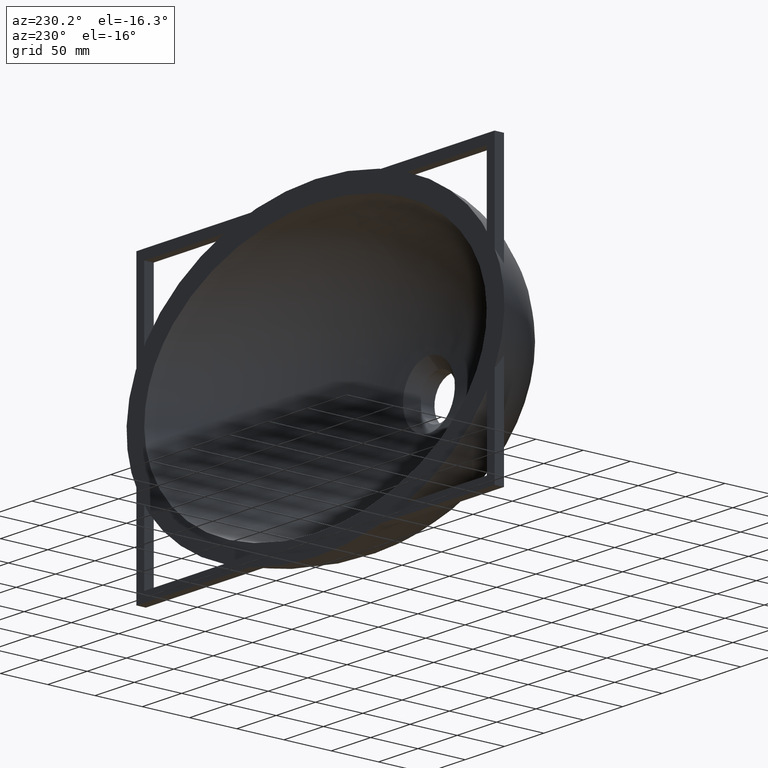
[diagram: clean part render]
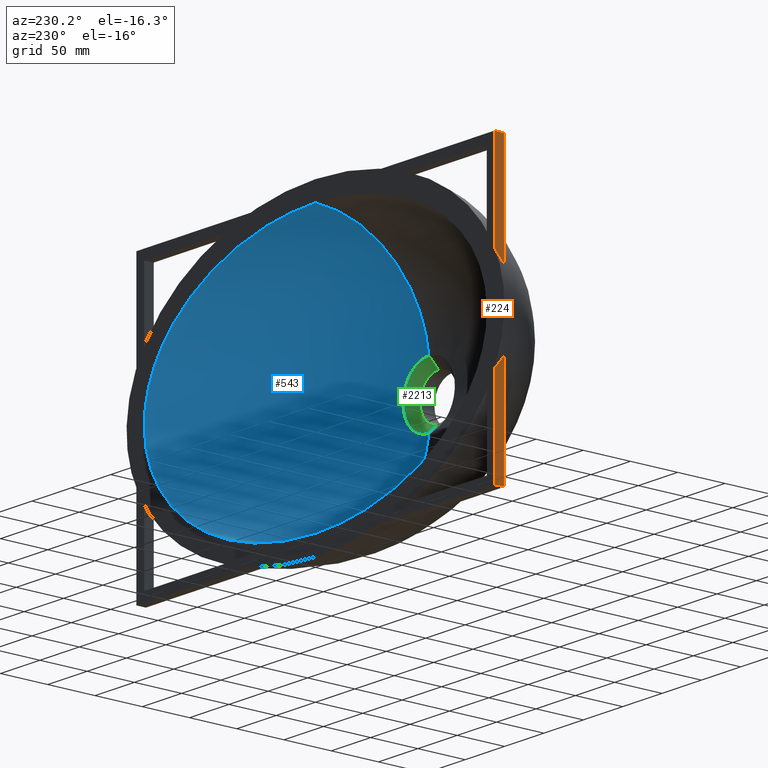
[diagram: same view with three faces highlighted in distinct colors, each labeled with its STEP entity id]
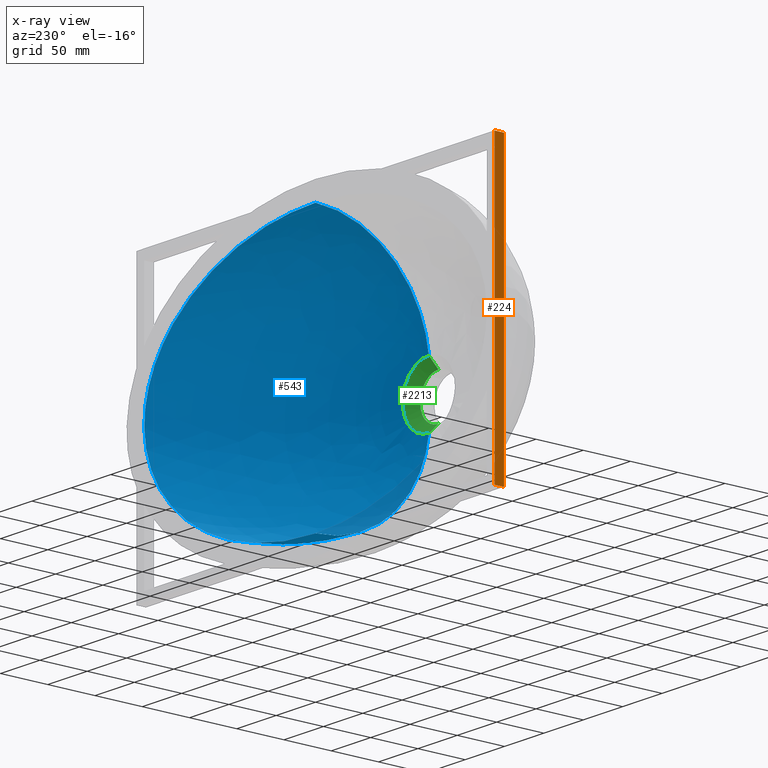
[diagram: x-ray of the same camera — body ghosted, the three highlighted faces saturated]
A machine part, auxiliary view with three faces highlighted in distinct colors.
The next image is the same camera in x-ray (body ghosted, the three faces saturated) — at least one of them is partly hidden behind the body in this view.
Their STEP definitions:

[orange] entity #224 — the highlighted planar face has unit normal (-1, 0, 0).
#18 = CARTESIAN_POINT ( 'NONE',  ( -227.5000000000001400, 0.0000000000000000000, 150.0000000000000600 ) ) ;
#170 = VERTEX_POINT ( 'NONE', #1966 ) ;
#219 = FACE_OUTER_BOUND ( 'NONE', #601, .T. ) ;
#224 = ADVANCED_FACE ( 'NONE', ( #219 ), #1062, .T. ) ;
#377 = VECTOR ( 'NONE', #2324, 1000.000000000000000 ) ;
#459 = CARTESIAN_POINT ( 'NONE',  ( -227.5000000000001400, -10.00000000000000000, 150.0000000000000600 ) ) ;
#492 = EDGE_CURVE ( 'NONE', #2083, #1416, #1623, .T. ) ;
#566 = DIRECTION ( 'NONE',  ( -1.000000000000000000, 0.0000000000000000000, 0.0000000000000000000 ) ) ;
#601 = EDGE_LOOP ( 'NONE', ( #784, #2197, #2049, #2721 ) ) ;
#605 = CARTESIAN_POINT ( 'NONE',  ( -227.5000000000001400, -10.00000000000000000, 150.0000000000000600 ) ) ;
#614 = AXIS2_PLACEMENT_3D ( 'NONE', #2547, #566, #2614 ) ;
#664 = VECTOR ( 'NONE', #2745, 1000.000000000000000 ) ;
#738 = CARTESIAN_POINT ( 'NONE',  ( -227.5000000000001400, -10.00000000000000000, 150.0000000000000600 ) ) ;
#784 = ORIENTED_EDGE ( 'NONE', *, *, #492, .F. ) ;
#920 = VECTOR ( 'NONE', #1674, 1000.000000000000000 ) ;
#1006 = CARTESIAN_POINT ( 'NONE',  ( -227.5000000000001400, 0.0000000000000000000, -150.0000000000000600 ) ) ;
#1062 = PLANE ( 'NONE',  #614 ) ;
#1222 = LINE ( 'NONE', #459, #664 ) ;
#1416 = VERTEX_POINT ( 'NONE', #18 ) ;
#1459 = CARTESIAN_POINT ( 'NONE',  ( -227.5000000000001400, 0.0000000000000000000, 150.0000000000000600 ) ) ;
#1543 = VECTOR ( 'NONE', #3087, 1000.000000000000000 ) ;
#1623 = LINE ( 'NONE', #1459, #1543 ) ;
#1629 = LINE ( 'NONE', #2823, #377 ) ;
#1666 = LINE ( 'NONE', #605, #920 ) ;
#1674 = DIRECTION ( 'NONE',  ( -0.0000000000000000000, -0.0000000000000000000, 1.000000000000000000 ) ) ;
#1872 = EDGE_CURVE ( 'NONE', #3094, #1416, #1222, .T. ) ;
#1966 = CARTESIAN_POINT ( 'NONE',  ( -227.5000000000001400, -10.00000000000000000, -150.0000000000000600 ) ) ;
#2049 = ORIENTED_EDGE ( 'NONE', *, *, #2611, .T. ) ;
#2083 = VERTEX_POINT ( 'NONE', #1006 ) ;
#2197 = ORIENTED_EDGE ( 'NONE', *, *, #2588, .F. ) ;
#2324 = DIRECTION ( 'NONE',  ( 0.0000000000000000000, 1.000000000000000000, 0.0000000000000000000 ) ) ;
#2547 = CARTESIAN_POINT ( 'NONE',  ( -227.5000000000001400, -10.00000000000000000, 150.0000000000000600 ) ) ;
#2588 = EDGE_CURVE ( 'NONE', #170, #2083, #1629, .T. ) ;
#2611 = EDGE_CURVE ( 'NONE', #170, #3094, #1666, .T. ) ;
#2614 = DIRECTION ( 'NONE',  ( 0.0000000000000000000, 0.0000000000000000000, 1.000000000000000000 ) ) ;
#2721 = ORIENTED_EDGE ( 'NONE', *, *, #1872, .T. ) ;
#2745 = DIRECTION ( 'NONE',  ( 0.0000000000000000000, 1.000000000000000000, 0.0000000000000000000 ) ) ;
#2823 = CARTESIAN_POINT ( 'NONE',  ( -227.5000000000001400, -10.00000000000000000, -150.0000000000000600 ) ) ;
#3087 = DIRECTION ( 'NONE',  ( -0.0000000000000000000, -0.0000000000000000000, 1.000000000000000000 ) ) ;
#3094 = VERTEX_POINT ( 'NONE', #738 ) ;

[blue] entity #543 — the highlighted face is a freeform B-spline surface patch.
#11 = CARTESIAN_POINT ( 'NONE',  ( -41.56835263324441600, -119.6359384131537200, 10.65723475440207800 ) ) ;
#16 = CARTESIAN_POINT ( 'NONE',  ( -132.8270214750946500, -45.82197878507607000, 94.65946393085154400 ) ) ;
#28 = CARTESIAN_POINT ( 'NONE',  ( -5.060428875571246500, -63.09001849514958600, 122.9562373321169700 ) ) ;
#32 = CARTESIAN_POINT ( 'NONE',  ( -44.13779843417822900, -116.9229571659076600, -38.98386121103657600 ) ) ;
#35 = CARTESIAN_POINT ( 'NONE',  ( -155.6603527541845700, 2.775557561562891400E-014, 100.3236698321202200 ) ) ;
#42 = CARTESIAN_POINT ( 'NONE',  ( 39.57430379665564100, -81.19885725404293500, 106.4228152066124300 ) ) ;
#45 = CARTESIAN_POINT ( 'NONE',  ( -161.4565826743787200, -68.44751098534096900, -32.17167586065722400 ) ) ;
#62 = CARTESIAN_POINT ( 'NONE',  ( -102.2314579813756700, -99.18923588093561200, -47.10903697538572000 ) ) ;
#63 = CARTESIAN_POINT ( 'NONE',  ( 43.15938982220106400, -119.6776503496503500, 2.255140518769849200E-014 ) ) ;
#66 = CARTESIAN_POINT ( 'NONE',  ( -3.549960211076625800E-010, -80.83348536693287700, -109.8646564862800500 ) ) ;
#72 = CARTESIAN_POINT ( 'NONE',  ( 109.7819321249633200, 0.0000000000000000000, -122.8334170658575900 ) ) ;
#82 = CARTESIAN_POINT ( 'NONE',  ( -107.6005860422245500, -7.663812784221568600, -122.7540640331523000 ) ) ;
#92 = CARTESIAN_POINT ( 'NONE',  ( 132.8270214750575600, -45.82197878506807600, -94.65946393086217400 ) ) ;
#98 = CARTESIAN_POINT ( 'NONE',  ( 60.31829089209622900, -117.6005794753397700, -14.37921816187542100 ) ) ;
#105 = CARTESIAN_POINT ( 'NONE',  ( -32.17118950397243500, -120.0000000000000300, -8.777137023834559000 ) ) ;
#113 = CARTESIAN_POINT ( 'NONE',  ( -206.1015952705827500, -25.52140029519259200, -2.463307335887066100E-013 ) ) ;
#131 = CARTESIAN_POINT ( 'NONE',  ( -6.150635556423367200E-011, -62.92757465455842000, -124.4958169493746100 ) ) ;
#139 = CARTESIAN_POINT ( 'NONE',  ( -1.316438730726371400, -119.1636202522265500, 40.26679227130107800 ) ) ;
#147 = CARTESIAN_POINT ( 'NONE',  ( -0.8142796771258842300, -116.1606320677880300, 54.69290937407542000 ) ) ;
#166 = CARTESIAN_POINT ( 'NONE',  ( 48.82308810633527700, -43.53764199406207100, -129.5158270008177200 ) ) ;
#173 = ORIENTED_EDGE ( 'NONE', *, *, #1711, .F. ) ;
#179 = CARTESIAN_POINT ( 'NONE',  ( 44.13779843414000900, -116.9229571659006800, -38.98386121104495300 ) ) ;
#181 = CARTESIAN_POINT ( 'NONE',  ( -30.66369549457530000, -96.15310151769514800, -91.41999275043397700 ) ) ;
#183 = CARTESIAN_POINT ( 'NONE',  ( -1.181109265762238200, -107.8169295291362500, 75.13673244669624300 ) ) ;
#186 = CARTESIAN_POINT ( 'NONE',  ( -1.023999319447376000, -120.0000000000000600, 32.98756784255958500 ) ) ;
#191 = CARTESIAN_POINT ( 'NONE',  ( -2.717964742160461400E-011, -21.89393603866704300, -140.3066426851461600 ) ) ;
#193 = CARTESIAN_POINT ( 'NONE',  ( -178.4207076104243900, -24.56680443821798600, -69.89690413845913500 ) ) ;
#195 = CARTESIAN_POINT ( 'NONE',  ( -132.8270214751458100, -45.82197878509175800, -94.65946393084688300 ) ) ;
#200 = CARTESIAN_POINT ( 'NONE',  ( -2.151057110211240800E-013, -43.25209989518683100, 132.7070388703011200 ) ) ;
#210 = CARTESIAN_POINT ( 'NONE',  ( -198.8674505272713900, -25.23502153810128200, -36.44467905284342600 ) ) ;
#236 = CARTESIAN_POINT ( 'NONE',  ( 6.245902015562590400, -21.99225941193602600, 138.6129304449905500 ) ) ;
#243 = CARTESIAN_POINT ( 'NONE',  ( -45.38697573347879900, -108.5759804376626500, 65.55058208391975000 ) ) ;
#244 = CARTESIAN_POINT ( 'NONE',  ( -83.39988800186229400, -98.09622751017396100, -66.69412176561324700 ) ) ;
#248 = CARTESIAN_POINT ( 'NONE',  ( -32.17118950397242100, -120.0000000000000300, 8.777137023834550100 ) ) ;
#258 = CARTESIAN_POINT ( 'NONE',  ( -109.7819321249366700, 0.0000000000000000000, -122.8334170658673700 ) ) ;
#260 = CARTESIAN_POINT ( 'NONE',  ( -3.469446951953614200E-014, -116.1606320677880600, 54.69290937407546200 ) ) ;
#267 = B_SPLINE_CURVE_WITH_KNOTS ( 'NONE', 3,
 ( #1957, #1809, #1924, #1471, #1910, #791, #3029, #1928, #2406, #1613, #550, #2795, #1750, #1344, #3035, #1862, #1684 ),
 .UNSPECIFIED., .F., .F.,
 ( 4, 1, 1, 1, 1, 1, 1, 1, 1, 1, 1, 1, 1, 1, 4 ),
 ( 0.5000000000000004400, 0.5416666666657651300, 0.5833333333325136900, 0.6249999999992623700, 0.6666666666660110400, 0.7083333333327595000, 0.7499999999995081700, 0.7916666666662568500, 0.8333333333330055200, 0.8749999999997540900, 0.9166666666665026500, 0.9583333333332514400, 0.9916666666666502600, 0.9937499999999877000, 1.000000000000000000 ),
 .UNSPECIFIED. ) ;
#276 = CARTESIAN_POINT ( 'NONE',  ( -23.61951603177939100, -120.0000000000000300, -23.61951603177940800 ) ) ;
#285 = CARTESIAN_POINT ( 'NONE',  ( -87.79702937928379900, -110.6844551835742900, 19.66902772454806600 ) ) ;
#297 = CARTESIAN_POINT ( 'NONE',  ( -1.734723475976807100E-013, -63.08528712115199300, 123.0010794568916500 ) ) ;
#312 = CARTESIAN_POINT ( 'NONE',  ( -6.938893903907228400E-015, -120.0000000000000300, 33.00000000000000000 ) ) ;
#313 = CARTESIAN_POINT ( 'NONE',  ( 7.322154802386592100, -116.1763020836940100, 54.43641371655053300 ) ) ;
#319 = CARTESIAN_POINT ( 'NONE',  ( -60.78651007786673000, 2.775557561562891400E-014, 135.8147164080128600 ) ) ;
#323 = CARTESIAN_POINT ( 'NONE',  ( -118.0322753506330400, -65.92411151983360200, 87.61938955760712100 ) ) ;
#328 = CARTESIAN_POINT ( 'NONE',  ( -60.31829089210594200, -117.6005794753419700, -14.37921816187265200 ) ) ;
#329 = CARTESIAN_POINT ( 'NONE',  ( -31.29872873584333000, -116.5417946168452100, 47.70811978436079000 ) ) ;
#333 = CARTESIAN_POINT ( 'NONE',  ( -51.81350481240389200, -43.60426848380002700, 128.6199218012937700 ) ) ;
#357 = CARTESIAN_POINT ( 'NONE',  ( 190.6906698519895800, 0.0000000000000000000, -70.78390841187659500 ) ) ;
#362 = CARTESIAN_POINT ( 'NONE',  ( -1.899985913293649000, -116.1619026096182000, 54.67245660088371300 ) ) ;
#378 = CARTESIAN_POINT ( 'NONE',  ( -186.9380325861550000, -8.331755385078299300, -70.70500344374576700 ) ) ;
#380 = CARTESIAN_POINT ( 'NONE',  ( 144.7181125249388500, -67.34352371917182700, -61.81039954576729700 ) ) ;
#405 = CARTESIAN_POINT ( 'NONE',  ( -1.734723475976807100E-013, -63.08528712115199300, 123.0010794568916500 ) ) ;
#409 = VERTEX_POINT ( 'NONE', #2075 ) ;
#418 = CARTESIAN_POINT ( 'NONE',  ( -1.457167719820518000E-013, -80.83348536693286200, 109.8646564862794200 ) ) ;
#429 = CARTESIAN_POINT ( 'NONE',  ( 25.75511797340574600, 2.775557561562891400E-014, 139.3847342975666400 ) ) ;
#454 = CARTESIAN_POINT ( 'NONE',  ( 162.8348448348159300, -47.10691823001806000, -66.76528916502425700 ) ) ;
#461 = CARTESIAN_POINT ( 'NONE',  ( -37.20779951852523500, -119.5386105613287400, 20.49502708738058800 ) ) ;
#476 = CARTESIAN_POINT ( 'NONE',  ( 46.03432338077975300, -63.47431120541832400, 119.1762495347901700 ) ) ;
#481 = CARTESIAN_POINT ( 'NONE',  ( -78.62591141148264700, -110.0940822547257300, -37.83286392480111000 ) ) ;
#500 = CARTESIAN_POINT ( 'NONE',  ( 83.26338564315261700, -64.50469932049846000, 107.4812804148906500 ) ) ;
#507 = CARTESIAN_POINT ( 'NONE',  ( 220.0497954431431300, 0.0000000000000000000, -6.418476861114186200E-014 ) ) ;
#508 = CARTESIAN_POINT ( 'NONE',  ( -1.734723475976807100E-013, -63.08528712115199300, 123.0010794568916500 ) ) ;
#510 = ORIENTED_EDGE ( 'NONE', *, *, #1836, .F. ) ;
#520 = CARTESIAN_POINT ( 'NONE',  ( -2.081668171172168500E-014, -119.1632031328615800, 40.28191919624397600 ) ) ;
#526 = CARTESIAN_POINT ( 'NONE',  ( -16.87630028773804000, -120.0000000000000000, -28.79005539188281300 ) ) ;
#534 = CARTESIAN_POINT ( 'NONE',  ( -152.5725396676366200, -7.997784084646131200, 100.2237282385866300 ) ) ;
#540 = CARTESIAN_POINT ( 'NONE',  ( 60.31829089210423700, -117.6005794753417700, 14.37921816187505400 ) ) ;
#543 = ADVANCED_FACE ( 'NONE', ( #2835 ), #1884, .T. ) ;
#550 = CARTESIAN_POINT ( 'NONE',  ( 23.61951603177940500, -120.0000000000000600, 23.61951603177941200 ) ) ;
#560 = CARTESIAN_POINT ( 'NONE',  ( 41.56835263324383300, -119.6359384131535700, -10.65723475440291200 ) ) ;
#568 = CARTESIAN_POINT ( 'NONE',  ( -45.38697573353034200, -108.5759804376720000, -65.55058208391381000 ) ) ;
#571 = CARTESIAN_POINT ( 'NONE',  ( -30.46951207059314700, -119.4134747518395400, 28.77634595603657200 ) ) ;
#574 = CARTESIAN_POINT ( 'NONE',  ( 2.864341853724868200, 2.775557561562891400E-014, 140.0000000000000000 ) ) ;
#595 = CARTESIAN_POINT ( 'NONE',  ( 19.50136297322666600, -63.14364073379250200, 122.4376907766251500 ) ) ;
#616 = CARTESIAN_POINT ( 'NONE',  ( -2.168755232387805000, -63.08528712115188600, 123.0010794568915900 ) ) ;
#620 = CARTESIAN_POINT ( 'NONE',  ( -102.6665750777155400, -22.84853189565597000, -121.4434167997585200 ) ) ;
#635 = CARTESIAN_POINT ( 'NONE',  ( -2.081668171172168500E-014, -119.1632031328615800, 40.28191919624397600 ) ) ;
#647 = CARTESIAN_POINT ( 'NONE',  ( -17.28646922207138900, -116.2650988404922900, 52.95463973616654100 ) ) ;
#658 = B_SPLINE_CURVE_WITH_KNOTS ( 'NONE', 3,
 ( #2307, #1591, #962, #200, #508, #2658, #2212, #819, #887, #635, #1185 ),
 .UNSPECIFIED., .F., .F.,
 ( 4, 1, 1, 1, 1, 1, 1, 1, 4 ),
 ( 0.09528450615764809400, 0.2083739428879420900, 0.3214633796182360700, 0.4345528163485300500, 0.5476422530788241900, 0.6607316898091180100, 0.7738211265394120400, 0.8869105632697060800, 1.000000000000000000 ),
 .UNSPECIFIED. ) ;
#666 = CARTESIAN_POINT ( 'NONE',  ( 93.67933869671510600, -44.53703934013647400, 116.0772490079067300 ) ) ;
#672 = CARTESIAN_POINT ( 'NONE',  ( -43.37510464781028900, -63.40071205434124800, -120.0116044719313100 ) ) ;
#692 = CARTESIAN_POINT ( 'NONE',  ( -44.13779843415601100, -116.9229571659030400, 38.98386121103946100 ) ) ;
#714 = CARTESIAN_POINT ( 'NONE',  ( -11.97758814161434200, -119.1974996139806300, 38.99789036147266300 ) ) ;
#715 = CARTESIAN_POINT ( 'NONE',  ( 186.9380325861538100, -8.331755385077134000, 70.70500344374376300 ) ) ;
#747 = CARTESIAN_POINT ( 'NONE',  ( -53.53630299056438700, -22.18031479576232500, -135.3735002380915400 ) ) ;
#748 = CARTESIAN_POINT ( 'NONE',  ( -107.6005860422210000, -7.663812784217433300, 122.7540640331508100 ) ) ;
#755 = CARTESIAN_POINT ( 'NONE',  ( -2.498001805406602200E-013, -21.98939562436497000, 138.6622618694610800 ) ) ;
#756 = CARTESIAN_POINT ( 'NONE',  ( 11.28376054907608000, -119.1910110905256300, -39.27345753338465800 ) ) ;
#759 = CARTESIAN_POINT ( 'NONE',  ( -2.676815149527223000, -21.98939562436491700, 138.6622618694610500 ) ) ;
#766 = CARTESIAN_POINT ( 'NONE',  ( -181.5907332733985700, -48.10631557609332300, 34.77701950853175100 ) ) ;
#781 = CARTESIAN_POINT ( 'NONE',  ( 198.8674505272687200, -25.23502153810053300, 36.44467905284502500 ) ) ;
#782 = CARTESIAN_POINT ( 'NONE',  ( -1.110223024625156500E-013, -95.91021076863492600, 93.73218920455237000 ) ) ;
#789 = CARTESIAN_POINT ( 'NONE',  ( -138.8315607857120100, -85.86969245951114300, -28.70871632348345400 ) ) ;
#791 = CARTESIAN_POINT ( 'NONE',  ( 28.79005539188281700, -120.0000000000000300, -16.87630028773804700 ) ) ;
#793 = CARTESIAN_POINT ( 'NONE',  ( 107.6005860422170300, -7.663812784214990800, -122.7540640331484100 ) ) ;
#794 = CARTESIAN_POINT ( 'NONE',  ( -6.908689576401066600E-011, -120.0000000000000000, -33.00000000000001400 ) ) ;
#796 = CARTESIAN_POINT ( 'NONE',  ( -54.00397268638551700, -117.3041197149647700, -27.65817947120605800 ) ) ;
#819 = CARTESIAN_POINT ( 'NONE',  ( -8.326672684688674100E-014, -107.8169295291363000, 75.13673244669630000 ) ) ;
#824 = CARTESIAN_POINT ( 'NONE',  ( -114.1282283364242700, -100.0393535026375400, -24.49674570853120400 ) ) ;
#829 = CARTESIAN_POINT ( 'NONE',  ( -2.775557561562891400E-013, 2.775557561562891400E-014, 140.0000000000000000 ) ) ;
#835 = EDGE_CURVE ( 'NONE', #409, #1455, #2018, .T. ) ;
#845 = CARTESIAN_POINT ( 'NONE',  ( 212.4004091137117600, 0.0000000000000000000, 36.95796737999869200 ) ) ;
#861 = CARTESIAN_POINT ( 'NONE',  ( 30.46951207058776500, -119.4134747518386900, -28.77634595603848300 ) ) ;
#867 = CARTESIAN_POINT ( 'NONE',  ( -3.946321791925902400, -120.0000000000001100, 32.84426857135493100 ) ) ;
#868 = CARTESIAN_POINT ( 'NONE',  ( 87.79702937928041700, -110.6844551835734500, -19.66902772455252800 ) ) ;
#869 = CARTESIAN_POINT ( 'NONE',  ( -13.78653328242056200, -95.95514555721021600, 93.29680331279576000 ) ) ;
#884 = CARTESIAN_POINT ( 'NONE',  ( -16.76411901345366200, -80.88829114999838100, 109.3574670015402700 ) ) ;
#887 = CARTESIAN_POINT ( 'NONE',  ( -3.469446951953614200E-014, -116.1606320677880600, 54.69290937407546200 ) ) ;
#890 = CARTESIAN_POINT ( 'NONE',  ( -101.4583354479325400, -83.49971265124914100, -78.19704882518802000 ) ) ;
#902 = CARTESIAN_POINT ( 'NONE',  ( -144.7181125249619000, -67.34352371917660200, 61.81039954575645400 ) ) ;
#913 = CARTESIAN_POINT ( 'NONE',  ( -181.5907332734170400, -48.10631557610006600, -34.77701950853132500 ) ) ;
#937 = CARTESIAN_POINT ( 'NONE',  ( -2.081668171172168500E-014, -119.1632031328615800, 40.28191919624397600 ) ) ;
#939 = CARTESIAN_POINT ( 'NONE',  ( 57.28683707410029100, 0.0000000000000000000, -136.7419520754212400 ) ) ;
#946 = CARTESIAN_POINT ( 'NONE',  ( 23.61951603177940500, -120.0000000000000600, 23.61951603177941200 ) ) ;
#958 = CARTESIAN_POINT ( 'NONE',  ( 198.8674505272586300, -25.23502153809606300, -36.44467905284519600 ) ) ;
#962 = CARTESIAN_POINT ( 'NONE',  ( -2.498001805406602200E-013, -21.98939562436497000, 138.6622618694610800 ) ) ;
#965 = CARTESIAN_POINT ( 'NONE',  ( 1.533184774726040100, -95.91021076863501100, 93.73218920455244100 ) ) ;
#970 = CARTESIAN_POINT ( 'NONE',  ( -2.775557561562891400E-013, 2.775557561562891400E-014, 140.0000000000000000 ) ) ;
#978 = CARTESIAN_POINT ( 'NONE',  ( 0.5641880274541294400, -119.1632031328615800, 40.28191919624398300 ) ) ;
#985 = CARTESIAN_POINT ( 'NONE',  ( 1.316438730726329900, -119.1636202522265600, 40.26679227130112100 ) ) ;
#986 = CARTESIAN_POINT ( 'NONE',  ( 25.07317134312629400, -108.0249657040672700, 72.75836194054345200 ) ) ;
#993 = CARTESIAN_POINT ( 'NONE',  ( -2.954302333706047300E-010, -95.91021076863495400, -93.73218920455187200 ) ) ;
#994 = CARTESIAN_POINT ( 'NONE',  ( -25.23722667152278400, -7.343571415028976400, 139.3806610728638000 ) ) ;
#999 = CARTESIAN_POINT ( 'NONE',  ( 21.69117443705606600, -119.2883389423510600, 35.13994995469428800 ) ) ;
#1010 = CARTESIAN_POINT ( 'NONE',  ( 3.577431141027598300, -95.91385412987099800, 93.69750625774064200 ) ) ;
#1018 = CARTESIAN_POINT ( 'NONE',  ( 102.2314579813553200, -99.18923588093194600, 47.10903697539642100 ) ) ;
#1022 = CARTESIAN_POINT ( 'NONE',  ( 152.5725396676371900, -7.997784084648213100, 100.2237282385855900 ) ) ;
#1036 = CARTESIAN_POINT ( 'NONE',  ( -5.696026945744919500, -43.25638302666981600, 132.6591706922588100 ) ) ;
#1041 = CARTESIAN_POINT ( 'NONE',  ( -78.62591141145352900, -110.0940822547184300, 37.83286392480387400 ) ) ;
#1045 = CARTESIAN_POINT ( 'NONE',  ( -118.3896615419208700, -100.4036896262221200, -3.417405247674310000E-013 ) ) ;
#1052 = CARTESIAN_POINT ( 'NONE',  ( -8.777137023834550100, -120.0000000000000000, -32.17118950397242800 ) ) ;
#1065 = CARTESIAN_POINT ( 'NONE',  ( 71.60199694469733300, -82.16659900907161800, -95.93130153651453900 ) ) ;
#1070 = CARTESIAN_POINT ( 'NONE',  ( -19.50136297322657700, -63.14364073379083200, 122.4376907766237800 ) ) ;
#1074 = CARTESIAN_POINT ( 'NONE',  ( 181.5907332734134600, -48.10631557609887200, 34.77701950853565200 ) ) ;
#1078 = CARTESIAN_POINT ( 'NONE',  ( -28.79005539188281300, -120.0000000000000300, -16.87630028773804700 ) ) ;
#1087 = CARTESIAN_POINT ( 'NONE',  ( -2.775557561562891400E-013, 2.775557561562891400E-014, 140.0000000000000000 ) ) ;
#1099 = CARTESIAN_POINT ( 'NONE',  ( -6.908689576401066600E-011, -120.0000000000000000, -33.00000000000001400 ) ) ;
#1109 = CARTESIAN_POINT ( 'NONE',  ( 124.3951799300158400, -84.83282629339264200, 55.18792347508749400 ) ) ;
#1113 = CARTESIAN_POINT ( 'NONE',  ( 178.4207076103944300, -24.56680443820672000, -69.89690413846312800 ) ) ;
#1122 = CARTESIAN_POINT ( 'NONE',  ( -2.441154405319403900, -43.25209989518674500, 132.7070388703010300 ) ) ;
#1130 = CARTESIAN_POINT ( 'NONE',  ( 155.6603527541924400, 0.0000000000000000000, -100.3236698321142300 ) ) ;
#1141 = CARTESIAN_POINT ( 'NONE',  ( -62.60306862804031200, -117.7276336583600900, -1.387778780781445700E-013 ) ) ;
#1149 = CARTESIAN_POINT ( 'NONE',  ( 102.2314579813159100, -99.18923588092140200, -47.10903697540008000 ) ) ;
#1169 = CARTESIAN_POINT ( 'NONE',  ( -64.17867876443297300, -109.3350313461902800, 53.48078534762301900 ) ) ;
#1179 = CARTESIAN_POINT ( 'NONE',  ( 87.79702937929542400, -110.6844551835773700, 19.66902772455180000 ) ) ;
#1180 = CARTESIAN_POINT ( 'NONE',  ( -2.151057110211240800E-013, -43.25209989518683100, 132.7070388703011200 ) ) ;
#1184 = CARTESIAN_POINT ( 'NONE',  ( 5.060428875570906400, -63.09001849515002600, 122.9562373321173000 ) ) ;
#1185 = CARTESIAN_POINT ( 'NONE',  ( -6.938893903907228400E-015, -120.0000000000000300, 33.00000000000000000 ) ) ;
#1207 = CARTESIAN_POINT ( 'NONE',  ( -6.549036598075284500, -7.330954721457366900, 139.9507899156337200 ) ) ;
#1211 = CARTESIAN_POINT ( 'NONE',  ( 118.0322753505873100, -65.92411151982504700, -87.61938955762072100 ) ) ;
#1215 = CARTESIAN_POINT ( 'NONE',  ( 25.23722667152224000, -7.343571415029365400, 139.3806610728635500 ) ) ;
#1220 = CARTESIAN_POINT ( 'NONE',  ( -83.26338564322071500, -64.50469932050897600, -107.4812804148762100 ) ) ;
#1227 = CARTESIAN_POINT ( 'NONE',  ( -16.87630028773804000, -120.0000000000000300, 28.79005539188280600 ) ) ;
#1266 = CARTESIAN_POINT ( 'NONE',  ( 8.777137023834564300, -120.0000000000000000, -32.17118950397243500 ) ) ;
#1267 = CARTESIAN_POINT ( 'NONE',  ( 2.441154405318932200, -43.25209989518691600, 132.7070388703011800 ) ) ;
#1269 = CARTESIAN_POINT ( 'NONE',  ( -161.4565826743561300, -68.44751098533349400, 32.17167586065800600 ) ) ;
#1275 = CARTESIAN_POINT ( 'NONE',  ( 118.0322753506503200, -65.92411151984239800, 87.61938955761418400 ) ) ;
#1276 = CARTESIAN_POINT ( 'NONE',  ( -2.259721496136143800E-010, -107.8169295291364300, -75.13673244669666900 ) ) ;
#1279 = CARTESIAN_POINT ( 'NONE',  ( 167.4168892163167800, -68.92064838511805600, 2.688821387764051000E-013 ) ) ;
#1281 = CARTESIAN_POINT ( 'NONE',  ( 64.17867876440286100, -109.3350313461855300, -53.48078534763346400 ) ) ;
#1286 = CARTESIAN_POINT ( 'NONE',  ( 78.62591141143845200, -110.0940822547156200, -37.83286392481203800 ) ) ;
#1300 = CARTESIAN_POINT ( 'NONE',  ( -54.00397268636994100, -117.3041197149611700, 27.65817947120766700 ) ) ;
#1306 = CARTESIAN_POINT ( 'NONE',  ( 0.4388568511917226300, -120.0000000000000300, 33.00000000000000000 ) ) ;
#1311 = CARTESIAN_POINT ( 'NONE',  ( -4.069661274641589400E-011, -107.7325905392999600, -76.06849699060866500 ) ) ;
#1314 = CARTESIAN_POINT ( 'NONE',  ( 190.6906698519815400, 0.0000000000000000000, 70.78390841187840000 ) ) ;
#1320 = CARTESIAN_POINT ( 'NONE',  ( -1.457167719820518000E-013, -80.83348536693286200, 109.8646564862794200 ) ) ;
#1337 = CARTESIAN_POINT ( 'NONE',  ( -186.9380325861529000, -8.331755385075078700, 70.70500344374475800 ) ) ;
#1344 = CARTESIAN_POINT ( 'NONE',  ( 3.946321791925881500, -120.0000000000000400, 32.84426857135494500 ) ) ;
#1347 = CARTESIAN_POINT ( 'NONE',  ( 208.2703021176172300, -8.591510840966016400, 36.89834944849246100 ) ) ;
#1348 = CARTESIAN_POINT ( 'NONE',  ( 30.66369549447097500, -96.15310151769232000, -91.41999275041942500 ) ) ;
#1357 = CARTESIAN_POINT ( 'NONE',  ( 62.60306862804128500, -117.7276336583603900, 9.714451465470119700E-014 ) ) ;
#1363 = CARTESIAN_POINT ( 'NONE',  ( -4.019353927402714200E-010, -63.08528712115209200, -123.0010794568910100 ) ) ;
#1366 = CARTESIAN_POINT ( 'NONE',  ( 109.7819321249490800, 2.775557561562891400E-014, 122.8334170658613100 ) ) ;
#1369 = CARTESIAN_POINT ( 'NONE',  ( -33.41440524801378600, -120.0000000000000300, -6.938893903907228400E-015 ) ) ;
#1377 = CARTESIAN_POINT ( 'NONE',  ( -4.481953588532256700E-010, -21.98939562436509500, -138.6622618694605600 ) ) ;
#1383 = CARTESIAN_POINT ( 'NONE',  ( -215.7975979792688900, -8.702834607774850200, -1.474514954580286000E-013 ) ) ;
#1385 = CARTESIAN_POINT ( 'NONE',  ( 28.79005539188281300, -120.0000000000000700, 16.87630028773805100 ) ) ;
#1393 = CARTESIAN_POINT ( 'NONE',  ( 181.5907332733949000, -48.10631557609210100, -34.77701950853632700 ) ) ;
#1394 = CARTESIAN_POINT ( 'NONE',  ( -3.115563362854345500E-012, -7.292733561519465700, -141.6403361455448900 ) ) ;
#1397 = EDGE_LOOP ( 'NONE', ( #173, #1736, #1740, #510 ) ) ;
#1400 = CARTESIAN_POINT ( 'NONE',  ( 2.676815149526681600, -21.98939562436502700, 138.6622618694611000 ) ) ;
#1403 = CARTESIAN_POINT ( 'NONE',  ( 144.7181125249829600, -67.34352371918542700, 61.81039954576355900 ) ) ;
#1418 = CARTESIAN_POINT ( 'NONE',  ( 145.5807437815783500, -23.70766816693248200, 99.09486023864752700 ) ) ;
#1424 = CARTESIAN_POINT ( 'NONE',  ( -2.864341853725471700, 2.775557561562891400E-014, 140.0000000000000000 ) ) ;
#1438 = CARTESIAN_POINT ( 'NONE',  ( -6.938893903907228400E-015, -120.0000000000000300, 33.00000000000000000 ) ) ;
#1448 = CARTESIAN_POINT ( 'NONE',  ( -118.0322753506958300, -65.92411151985102400, -87.61938955760001600 ) ) ;
#1451 = CARTESIAN_POINT ( 'NONE',  ( -114.1282283364040600, -100.0393535026318300, 24.49674570853201800 ) ) ;
#1455 = VERTEX_POINT ( 'NONE', #1099 ) ;
#1457 = CARTESIAN_POINT ( 'NONE',  ( 114.1282283364196400, -100.0393535026367300, 24.49674570853697400 ) ) ;
#1466 = CARTESIAN_POINT ( 'NONE',  ( -60.31829089209794900, -117.6005794753400000, 14.37921816187300400 ) ) ;
#1471 = CARTESIAN_POINT ( 'NONE',  ( 16.87630028773805100, -119.9999999999999900, -28.79005539188280900 ) ) ;
#1472 = VERTEX_POINT ( 'NONE', #312 ) ;
#1475 = CARTESIAN_POINT ( 'NONE',  ( -43.15938982220074400, -119.6776503496503600, -4.857225732735059900E-014 ) ) ;
#1483 = CARTESIAN_POINT ( 'NONE',  ( -138.8315607856889900, -85.86969245950415100, 28.70871632348428900 ) ) ;
#1489 = CARTESIAN_POINT ( 'NONE',  ( 4.350104666708542600, -80.83792907907356100, 109.8242697745882600 ) ) ;
#1490 = CARTESIAN_POINT ( 'NONE',  ( 25.75511797340574600, 2.775557561562891400E-014, 139.3847342975666400 ) ) ;
#1512 = CARTESIAN_POINT ( 'NONE',  ( 5.073310513781806600, -119.1683476050295800, 40.09233432982185300 ) ) ;
#1513 = CARTESIAN_POINT ( 'NONE',  ( -46.03432338077706700, -63.47431120541438800, 119.1762495347870300 ) ) ;
#1517 = CARTESIAN_POINT ( 'NONE',  ( 60.78651007786565700, 2.775557561562891400E-014, 135.8147164080114100 ) ) ;
#1525 = CARTESIAN_POINT ( 'NONE',  ( 124.3951799299709900, -84.83282629337979600, -55.18792347509182200 ) ) ;
#1530 = CARTESIAN_POINT ( 'NONE',  ( -208.2703021176175500, -8.591510840966293500, -36.89834944849359000 ) ) ;
#1547 = CARTESIAN_POINT ( 'NONE',  ( -83.39988800180617500, -98.09622751016058800, 66.69412176562012500 ) ) ;
#1561 = CARTESIAN_POINT ( 'NONE',  ( -56.13459941207417400, -7.404057328329550100, -136.7193277089091600 ) ) ;
#1569 = CARTESIAN_POINT ( 'NONE',  ( 83.26338564307450000, -64.50469932048110900, -107.4812804148985200 ) ) ;
#1588 = CARTESIAN_POINT ( 'NONE',  ( -9.600190522786947800E-011, -119.1632031328615500, -40.28191919624398300 ) ) ;
#1591 = CARTESIAN_POINT ( 'NONE',  ( -2.567390744445674500E-013, -7.329841483789318000, 140.0000000000000000 ) ) ;
#1613 = CARTESIAN_POINT ( 'NONE',  ( 28.79005539188281300, -120.0000000000000700, 16.87630028773805100 ) ) ;
#1630 = CARTESIAN_POINT ( 'NONE',  ( -48.82308810643057500, -43.53764199406548100, -129.5158270008289800 ) ) ;
#1632 = CARTESIAN_POINT ( 'NONE',  ( -41.56835263324712300, -119.6359384131543800, -10.65723475440196400 ) ) ;
#1651 = CARTESIAN_POINT ( 'NONE',  ( 37.20779951852777900, -119.5386105613295100, 20.49502708738155100 ) ) ;
#1653 = CARTESIAN_POINT ( 'NONE',  ( 78.62591141146762700, -110.0940822547229100, 37.83286392480904700 ) ) ;
#1654 = CARTESIAN_POINT ( 'NONE',  ( 101.4583354478225100, -83.49971265122438500, -78.19704882521017500 ) ) ;
#1660 = CARTESIAN_POINT ( 'NONE',  ( 215.7975979792689100, -8.702834607775017200, -1.734723475976807100E-015 ) ) ;
#1665 = CARTESIAN_POINT ( 'NONE',  ( 45.38697573348532200, -108.5759804376662000, 65.55058208392381400 ) ) ;
#1668 = CARTESIAN_POINT ( 'NONE',  ( 190.6906698519895800, 0.0000000000000000000, -70.78390841187659500 ) ) ;
#1680 = CARTESIAN_POINT ( 'NONE',  ( -2.755921620111734200, -107.8194596988313200, 75.10877951037882400 ) ) ;
#1684 = CARTESIAN_POINT ( 'NONE',  ( -6.938893903907228400E-015, -120.0000000000000300, 33.00000000000000000 ) ) ;
#1691 = CARTESIAN_POINT ( 'NONE',  ( 212.4004091137158200, 0.0000000000000000000, -36.95796737999816600 ) ) ;
#1699 = VERTEX_POINT ( 'NONE', #829 ) ;
#1700 = CARTESIAN_POINT ( 'NONE',  ( 138.8315607857071300, -85.86969245950959400, 28.70871632348973200 ) ) ;
#1701 = CARTESIAN_POINT ( 'NONE',  ( 16.76411901345381500, -80.88829114999987300, 109.3574670015416800 ) ) ;
#1710 = CARTESIAN_POINT ( 'NONE',  ( 60.78651007786565700, 2.775557561562891400E-014, 135.8147164080114100 ) ) ;
#1711 = EDGE_CURVE ( 'NONE', #409, #1699, #3080, .T. ) ;
#1723 = CARTESIAN_POINT ( 'NONE',  ( -2.775557561562891400E-013, 2.775557561562891400E-014, 140.0000000000000000 ) ) ;
#1726 = EDGE_CURVE ( 'NONE', #1455, #1472, #267, .T. ) ;
#1736 = ORIENTED_EDGE ( 'NONE', *, *, #835, .T. ) ;
#1740 = ORIENTED_EDGE ( 'NONE', *, *, #1726, .T. ) ;
#1744 = CARTESIAN_POINT ( 'NONE',  ( 107.6005860422210500, -7.663812784219042700, 122.7540640331499200 ) ) ;
#1750 = CARTESIAN_POINT ( 'NONE',  ( 9.317081241428118300, -120.0000000000000000, 31.94578056316645800 ) ) ;
#1751 = CARTESIAN_POINT ( 'NONE',  ( -11.28376054908993000, -119.1910110905259600, -39.27345753338669700 ) ) ;
#1755 = CARTESIAN_POINT ( 'NONE',  ( 45.38697573343362300, -108.5759804376569700, -65.55058208393029400 ) ) ;
#1764 = CARTESIAN_POINT ( 'NONE',  ( -6.251943407420412800E-011, -80.68536162891598500, -111.2108802093248000 ) ) ;
#1768 = CARTESIAN_POINT ( 'NONE',  ( -8.326672684688674100E-014, -107.8169295291363000, 75.13673244669630000 ) ) ;
#1772 = CARTESIAN_POINT ( 'NONE',  ( 56.81165446301546500, -22.22486260242134600, 134.4448280088683700 ) ) ;
#1786 = CARTESIAN_POINT ( 'NONE',  ( 32.54621265929530000, -96.20977602580896400, 90.77875294122912900 ) ) ;
#1801 = CARTESIAN_POINT ( 'NONE',  ( 21.69117443704678600, -119.2883389423494400, -35.13994995469543900 ) ) ;
#1809 = CARTESIAN_POINT ( 'NONE',  ( 2.925712341209166600, -120.0000000000000100, -33.00000000000979100 ) ) ;
#1819 = CARTESIAN_POINT ( 'NONE',  ( -109.7819321249514100, 2.775557561562891400E-014, 122.8334170658636400 ) ) ;
#1824 = CARTESIAN_POINT ( 'NONE',  ( -208.2703021176164400, -8.591510840964545500, 36.89834944849305700 ) ) ;
#1832 = CARTESIAN_POINT ( 'NONE',  ( -1.110223024625156500E-013, -95.91021076863492600, 93.73218920455237000 ) ) ;
#1836 = EDGE_CURVE ( 'NONE', #1699, #1472, #658, .T. ) ;
#1843 = CARTESIAN_POINT ( 'NONE',  ( 9.317081241428118300, -120.0000000000000000, 31.94578056316645800 ) ) ;
#1848 = CARTESIAN_POINT ( 'NONE',  ( 17.28646922207240200, -116.2650988404933800, 52.95463973616782000 ) ) ;
#1862 = CARTESIAN_POINT ( 'NONE',  ( 0.4388568511917226300, -120.0000000000000300, 33.00000000000000000 ) ) ;
#1864 = CARTESIAN_POINT ( 'NONE',  ( -178.4207076104050600, -24.56680443820966200, 69.89690413846008700 ) ) ;
#1866 = CARTESIAN_POINT ( 'NONE',  ( 143.9869658857289200, -86.31406367355759800, 2.931682674400804000E-013 ) ) ;
#1874 = CARTESIAN_POINT ( 'NONE',  ( -32.54621265929282000, -96.20977602580585100, 90.77875294122607400 ) ) ;
#1878 = CARTESIAN_POINT ( 'NONE',  ( -5.496297861284915600E-011, -95.78876539410555300, -94.88828743161445800 ) ) ;
#1879 = CARTESIAN_POINT ( 'NONE',  ( 190.6906698519815400, 0.0000000000000000000, 70.78390841187840000 ) ) ;
#1884 = B_SPLINE_SURFACE_WITH_KNOTS ( 'NONE', 3, 3, ( 
 ( #970, #1424, #2121, #1895, #319, #1819, #35, #2967, #3069, #2082, #2276, #2237, #1991, #258, #2815, #2825, #3002, #2413, #2905, #357, #1691, #507, #845, #1314, #1950, #2205, #1517, #429, #1914, #2616, #1087 ),
 ( #2875, #1951, #1207, #994, #2698, #748, #534, #1337, #1824, #1383, #1530, #378, #2424, #82, #1561, #1394, #2914, #793, #2948, #2561, #2924, #1660, #1347, #715, #1022, #1744, #2782, #1215, #2437, #2632, #2927 ),
 ( #2228, #759, #3039, #2445, #2460, #2013, #2659, #1864, #2200, #113, #210, #193, #2829, #620, #747, #191, #1904, #3122, #2918, #1113, #958, #2411, #781, #3006, #1418, #2405, #1772, #2728, #236, #1400, #755 ),
 ( #2360, #1122, #1036, #2897, #333, #2753, #16, #2707, #766, #3097, #913, #2115, #195, #2866, #1630, #2647, #166, #2294, #92, #454, #1393, #1969, #1074, #2029, #2615, #666, #2073, #2170, #2174, #1267, #1180 ),
 ( #297, #616, #28, #1070, #1513, #2051, #323, #902, #1269, #1977, #45, #2642, #1448, #1220, #672, #131, #2269, #1569, #1211, #380, #2465, #1279, #1926, #1403, #1275, #500, #476, #595, #1184, #2997, #405 ),
 ( #418, #2250, #2725, #884, #3057, #3078, #2078, #2370, #1483, #2005, #789, #2670, #890, #2157, #2282, #1764, #2510, #1065, #1654, #1525, #2556, #1866, #1700, #1109, #3084, #1942, #42, #1701, #1489, #2015, #1320 ),
 ( #782, #2327, #2492, #869, #1874, #2891, #1547, #3021, #1451, #1045, #824, #62, #244, #2983, #181, #1878, #1348, #2371, #1967, #1149, #2179, #2245, #1457, #1018, #1927, #3114, #1786, #1933, #1010, #965, #1832 ),
 ( #2892, #183, #1680, #2879, #3042, #243, #1169, #1041, #285, #1959, #2021, #481, #2847, #568, #3129, #1311, #2925, #1755, #1281, #1286, #868, #2609, #1179, #1653, #2855, #1665, #986, #2182, #2729, #2726, #1768 ),
 ( #2315, #147, #362, #2176, #647, #329, #692, #1300, #1466, #1141, #328, #796, #32, #2949, #2298, #2595, #2797, #2504, #179, #2190, #98, #1357, #540, #2805, #3145, #2776, #1848, #313, #2843, #2396, #260 ),
 ( #937, #1920, #139, #1958, #714, #3136, #571, #461, #11, #1475, #1632, #2195, #2836, #2796, #1751, #2779, #756, #1801, #861, #2573, #560, #63, #3135, #1651, #2833, #999, #3011, #1512, #985, #978, #520 ),
 ( #2393, #2893, #186, #867, #3085, #1227, #2144, #2271, #248, #1369, #105, #1078, #276, #526, #1052, #2421, #1266, #2535, #2819, #2762, #2126, #2218, #2719, #1385, #946, #1894, #1843, #2525, #2243, #1306, #1438 ) ),
 .UNSPECIFIED., .F., .T., .F.,
 ( 4, 1, 1, 1, 1, 1, 1, 1, 4 ),
 ( 4, 1, 1, 1, 1, 1, 1, 1, 1, 1, 1, 1, 1, 1, 1, 1, 1, 1, 1, 1, 1, 1, 1, 1, 1, 1, 1, 1, 4 ),
 ( 0.09528450615764809400, 0.2083739428879420900, 0.3214633796182360700, 0.4345528163485300500, 0.5476422530788241900, 0.6607316898091180100, 0.7738211265394120400, 0.8869105632697060800, 1.000000000000000000 ),
 ( 0.0000000000000000000, 0.006250000000000088800, 0.008333333333333303700, 0.04166666666666663000, 0.08333333333333337000, 0.1249999999999998900, 0.1666666666666666300, 0.2083333333333333700, 0.2499999999999998300, 0.2916666666666666300, 0.3333333333333333700, 0.3750000000000001100, 0.4166666666666666300, 0.4583333333333333700, 0.5000000000009839900, 0.5416666666666667400, 0.5833333333333332600, 0.6250000000000000000, 0.6666666666666667400, 0.7083333333333332600, 0.7499999999999998900, 0.7916666666666666300, 0.8333333333333333700, 0.8750000000000000000, 0.9166666666666666300, 0.9583333333333333700, 0.9916666666666667000, 0.9937500000000000200, 1.000000000000000000 ),
 .UNSPECIFIED. ) ;
#1894 = CARTESIAN_POINT ( 'NONE',  ( 16.87630028773804700, -120.0000000000000300, 28.79005539188281300 ) ) ;
#1895 = CARTESIAN_POINT ( 'NONE',  ( -25.75511797340643100, 2.775557561562891400E-014, 139.3847342975672600 ) ) ;
#1904 = CARTESIAN_POINT ( 'NONE',  ( 53.53630299051273800, -22.18031479576007600, -135.3735002380871600 ) ) ;
#1910 = CARTESIAN_POINT ( 'NONE',  ( 23.61951603177941200, -120.0000000000000000, -23.61951603177940500 ) ) ;
#1914 = CARTESIAN_POINT ( 'NONE',  ( 6.683464325358386300, 2.775557561562891400E-014, 139.9511292811295700 ) ) ;
#1920 = CARTESIAN_POINT ( 'NONE',  ( -0.5641880274541779500, -119.1632031328615800, 40.28191919624396200 ) ) ;
#1922 = CARTESIAN_POINT ( 'NONE',  ( 212.4004091137158200, 0.0000000000000000000, -36.95796737999816600 ) ) ;
#1924 = CARTESIAN_POINT ( 'NONE',  ( 8.777137023770835700, -120.0000000000000000, -32.17118950399903800 ) ) ;
#1926 = CARTESIAN_POINT ( 'NONE',  ( 161.4565826743734600, -68.44751098533983200, 32.17167586066315700 ) ) ;
#1927 = CARTESIAN_POINT ( 'NONE',  ( 83.39988800182169400, -98.09622751016740900, 66.69412176562694600 ) ) ;
#1928 = CARTESIAN_POINT ( 'NONE',  ( 33.41440524801380000, -120.0000000000000100, -1.040834085586084300E-014 ) ) ;
#1933 = CARTESIAN_POINT ( 'NONE',  ( 13.78653328242071500, -95.95514555721149500, 93.29680331279705300 ) ) ;
#1942 = CARTESIAN_POINT ( 'NONE',  ( 71.60199694477674400, -82.16659900908793200, 95.93130153650513100 ) ) ;
#1950 = CARTESIAN_POINT ( 'NONE',  ( 155.6603527541809900, 2.775557561562891400E-014, 100.3236698321173300 ) ) ;
#1951 = CARTESIAN_POINT ( 'NONE',  ( -2.806729970603869100, -7.329841483789289600, 140.0000000000000000 ) ) ;
#1957 = CARTESIAN_POINT ( 'NONE',  ( -6.908689576401066600E-011, -120.0000000000000000, -33.00000000000001400 ) ) ;
#1958 = CARTESIAN_POINT ( 'NONE',  ( -5.073310513781799500, -119.1683476050294800, 40.09233432982166100 ) ) ;
#1959 = CARTESIAN_POINT ( 'NONE',  ( -91.09472498280079800, -110.9374721530851400, -2.359223927328457600E-013 ) ) ;
#1967 = CARTESIAN_POINT ( 'NONE',  ( 83.39988800176540500, -98.09622751015398000, -66.69412176563339800 ) ) ;
#1969 = CARTESIAN_POINT ( 'NONE',  ( 188.2491896305813300, -48.53462872441186000, 2.307182223049153400E-013 ) ) ;
#1977 = CARTESIAN_POINT ( 'NONE',  ( -167.4168892163145300, -68.92064838511727500, -3.833738881908743700E-013 ) ) ;
#1991 = CARTESIAN_POINT ( 'NONE',  ( -155.6603527541727500, 0.0000000000000000000, -100.3236698321235100 ) ) ;
#2005 = CARTESIAN_POINT ( 'NONE',  ( -143.9869658857261400, -86.31406367355742800, -3.590877595271990700E-013 ) ) ;
#2011 = CARTESIAN_POINT ( 'NONE',  ( 19.09561235772772400, 0.0000000000000000000, -140.0000000000395600 ) ) ;
#2013 = CARTESIAN_POINT ( 'NONE',  ( -102.6665750776814000, -22.84853189564531200, 121.4434167997612200 ) ) ;
#2015 = CARTESIAN_POINT ( 'NONE',  ( 1.864330571446429100, -80.83348536693293300, 109.8646564862794900 ) ) ;
#2018 = B_SPLINE_CURVE_WITH_KNOTS ( 'NONE', 3,
 ( #2801, #2227, #1377, #2474, #1363, #66, #993, #1276, #2673, #1588, #794 ),
 .UNSPECIFIED., .F., .F.,
 ( 4, 1, 1, 1, 1, 1, 1, 1, 4 ),
 ( 0.09528450615764809400, 0.2083739428879420900, 0.3214633796182360700, 0.4345528163485300500, 0.5476422530788241900, 0.6607316898091180100, 0.7738211265394120400, 0.8869105632697060800, 1.000000000000000000 ),
 .UNSPECIFIED. ) ;
#2021 = CARTESIAN_POINT ( 'NONE',  ( -87.79702937929879200, -110.6844551835782800, -19.66902772454745800 ) ) ;
#2029 = CARTESIAN_POINT ( 'NONE',  ( 162.8348448348519600, -47.10691823003046600, 66.76528916502124400 ) ) ;
#2051 = CARTESIAN_POINT ( 'NONE',  ( -83.26338564314295400, -64.50469932049155400, 107.4812804148851200 ) ) ;
#2073 = CARTESIAN_POINT ( 'NONE',  ( 51.81350481240600200, -43.60426848380358000, 128.6199218012960700 ) ) ;
#2075 = CARTESIAN_POINT ( 'NONE',  ( -4.399283321999181700E-010, 0.0000000000000000000, -140.0000000000000300 ) ) ;
#2078 = CARTESIAN_POINT ( 'NONE',  ( -101.4583354478686900, -83.49971265123282600, 78.19704882519498300 ) ) ;
#2082 = CARTESIAN_POINT ( 'NONE',  ( -220.0497954431437500, 2.775557561562891400E-014, -8.500145032286354800E-014 ) ) ;
#2115 = CARTESIAN_POINT ( 'NONE',  ( -162.8348448348700700, -47.10691823003499200, -66.76528916501335700 ) ) ;
#2121 = CARTESIAN_POINT ( 'NONE',  ( -6.683464325359003600, 2.775557561562891400E-014, 139.9511292811297700 ) ) ;
#2126 = CARTESIAN_POINT ( 'NONE',  ( 32.17118950397243500, -120.0000000000000300, -8.777137023834559000 ) ) ;
#2144 = CARTESIAN_POINT ( 'NONE',  ( -23.61951603177939100, -120.0000000000000300, 23.61951603177940500 ) ) ;
#2157 = CARTESIAN_POINT ( 'NONE',  ( -71.60199694484583700, -82.16659900909800700, -95.93130153649072200 ) ) ;
#2170 = CARTESIAN_POINT ( 'NONE',  ( 21.95055546029206500, -43.30492518347983800, 132.1053179921993900 ) ) ;
#2174 = CARTESIAN_POINT ( 'NONE',  ( 5.696026945744475400, -43.25638302667020000, 132.6591706922590400 ) ) ;
#2176 = CARTESIAN_POINT ( 'NONE',  ( -7.322154802386515700, -116.1763020836936000, 54.43641371654997800 ) ) ;
#2179 = CARTESIAN_POINT ( 'NONE',  ( 114.1282283363993700, -100.0393535026309900, -24.49674570853785100 ) ) ;
#2182 = CARTESIAN_POINT ( 'NONE',  ( 10.62069641737427300, -107.8481349553762400, 74.78597821811153800 ) ) ;
#2190 = CARTESIAN_POINT ( 'NONE',  ( 54.00397268636198300, -117.3041197149598700, -27.65817947121202300 ) ) ;
#2195 = CARTESIAN_POINT ( 'NONE',  ( -37.20779951853045700, -119.5386105613298900, -20.49502708738005900 ) ) ;
#2200 = CARTESIAN_POINT ( 'NONE',  ( -198.8674505272614100, -25.23502153809676000, 36.44467905284341200 ) ) ;
#2205 = CARTESIAN_POINT ( 'NONE',  ( 109.7819321249490800, 2.775557561562891400E-014, 122.8334170658613100 ) ) ;
#2212 = CARTESIAN_POINT ( 'NONE',  ( -1.110223024625156500E-013, -95.91021076863492600, 93.73218920455237000 ) ) ;
#2218 = CARTESIAN_POINT ( 'NONE',  ( 33.41440524801380000, -120.0000000000000100, -1.040834085586084300E-014 ) ) ;
#2225 = CARTESIAN_POINT ( 'NONE',  ( 155.6603527541809900, 2.775557561562891400E-014, 100.3236698321173300 ) ) ;
#2227 = CARTESIAN_POINT ( 'NONE',  ( -4.449890607897684000E-010, -7.329841483789350000, -140.0000000000000300 ) ) ;
#2228 = CARTESIAN_POINT ( 'NONE',  ( -2.498001805406602200E-013, -21.98939562436497000, 138.6622618694610800 ) ) ;
#2237 = CARTESIAN_POINT ( 'NONE',  ( -190.6906698519774500, 2.775557561562891400E-014, -70.78390841188327400 ) ) ;
#2243 = CARTESIAN_POINT ( 'NONE',  ( 1.023999319447355100, -120.0000000000000300, 32.98756784255958500 ) ) ;
#2245 = CARTESIAN_POINT ( 'NONE',  ( 118.3896615419229900, -100.4036896262227300, 2.498001805406602200E-013 ) ) ;
#2250 = CARTESIAN_POINT ( 'NONE',  ( -1.864330571446748400, -80.83348536693277700, 109.8646564862793300 ) ) ;
#2266 = CARTESIAN_POINT ( 'NONE',  ( 212.4004091137117600, 0.0000000000000000000, 36.95796737999869200 ) ) ;
#2269 = CARTESIAN_POINT ( 'NONE',  ( 43.37510464769351900, -63.40071205433758900, -120.0116044719162600 ) ) ;
#2271 = CARTESIAN_POINT ( 'NONE',  ( -28.79005539188281300, -120.0000000000000400, 16.87630028773805100 ) ) ;
#2276 = CARTESIAN_POINT ( 'NONE',  ( -212.4004091137108200, 2.775557561562891400E-014, -36.95796738000139200 ) ) ;
#2282 = CARTESIAN_POINT ( 'NONE',  ( -37.28661142899078100, -81.12973284296842300, -107.1722090401985400 ) ) ;
#2294 = CARTESIAN_POINT ( 'NONE',  ( 93.67933869665130000, -44.53703934012068500, -116.0772490079133100 ) ) ;
#2298 = CARTESIAN_POINT ( 'NONE',  ( -16.28559354253725300, -116.2453348564679800, -53.32939116129893600 ) ) ;
#2307 = CARTESIAN_POINT ( 'NONE',  ( -2.775557561562891400E-013, 2.775557561562891400E-014, 140.0000000000000000 ) ) ;
#2315 = CARTESIAN_POINT ( 'NONE',  ( -3.469446951953614200E-014, -116.1606320677880600, 54.69290937407546200 ) ) ;
#2327 = CARTESIAN_POINT ( 'NONE',  ( -1.533184774726297000, -95.91021076863484000, 93.73218920455229900 ) ) ;
#2360 = CARTESIAN_POINT ( 'NONE',  ( -2.151057110211240800E-013, -43.25209989518683100, 132.7070388703011200 ) ) ;
#2370 = CARTESIAN_POINT ( 'NONE',  ( -124.3951799299939900, -84.83282629338481200, 55.18792347507994800 ) ) ;
#2371 = CARTESIAN_POINT ( 'NONE',  ( 58.90145296602047900, -97.00321913938871900, -81.80139561244456600 ) ) ;
#2393 = CARTESIAN_POINT ( 'NONE',  ( -6.938893903907228400E-015, -120.0000000000000300, 33.00000000000000000 ) ) ;
#2396 = CARTESIAN_POINT ( 'NONE',  ( 0.8142796771257940800, -116.1606320677880900, 54.69290937407549100 ) ) ;
#2405 = CARTESIAN_POINT ( 'NONE',  ( 102.6665750776852900, -22.84853189564947600, 121.4434167997628400 ) ) ;
#2406 = CARTESIAN_POINT ( 'NONE',  ( 32.17118950397242800, -120.0000000000000300, 8.777137023834557200 ) ) ;
#2408 = CARTESIAN_POINT ( 'NONE',  ( -4.399283321999181700E-010, 0.0000000000000000000, -140.0000000000000300 ) ) ;
#2411 = CARTESIAN_POINT ( 'NONE',  ( 206.1015952705833200, -25.52140029519300800, 1.023486850826316200E-013 ) ) ;
#2413 = CARTESIAN_POINT ( 'NONE',  ( 109.7819321249633200, 0.0000000000000000000, -122.8334170658575900 ) ) ;
#2421 = CARTESIAN_POINT ( 'NONE',  ( 1.387778780781445700E-014, -120.0000000000000000, -33.41440524801380000 ) ) ;
#2424 = CARTESIAN_POINT ( 'NONE',  ( -152.5725396676395500, -7.997784084650266600, -100.2237282385881100 ) ) ;
#2437 = CARTESIAN_POINT ( 'NONE',  ( 6.549036598074716100, -7.330954721457450400, 139.9507899156336400 ) ) ;
#2445 = CARTESIAN_POINT ( 'NONE',  ( -24.06930619122561800, -22.02471567107275200, 138.0417438790145500 ) ) ;
#2460 = CARTESIAN_POINT ( 'NONE',  ( -56.81165446301461900, -22.22486260241895900, 134.4448280088674900 ) ) ;
#2465 = CARTESIAN_POINT ( 'NONE',  ( 161.4565826743507600, -68.44751098533244300, -32.17167586066403100 ) ) ;
#2474 = CARTESIAN_POINT ( 'NONE',  ( -4.337296898410086200E-010, -43.25209989518676000, -132.7070388703016600 ) ) ;
#2492 = CARTESIAN_POINT ( 'NONE',  ( -3.577431141027820300, -95.91385412987065700, 93.69750625774031500 ) ) ;
#2504 = CARTESIAN_POINT ( 'NONE',  ( 31.29872873581925000, -116.5417946168423000, -47.70811978436621100 ) ) ;
#2510 = CARTESIAN_POINT ( 'NONE',  ( 37.28661142887212800, -81.12973284296484200, -107.1722090401825200 ) ) ;
#2525 = CARTESIAN_POINT ( 'NONE',  ( 3.946321791925881500, -120.0000000000000400, 32.84426857135494500 ) ) ;
#2531 = CARTESIAN_POINT ( 'NONE',  ( 220.0497954431431300, 0.0000000000000000000, -6.418476861114186200E-014 ) ) ;
#2535 = CARTESIAN_POINT ( 'NONE',  ( 16.87630028773805100, -119.9999999999999900, -28.79005539188280900 ) ) ;
#2556 = CARTESIAN_POINT ( 'NONE',  ( 138.8315607856840500, -85.86969245950260200, -28.70871632349076600 ) ) ;
#2561 = CARTESIAN_POINT ( 'NONE',  ( 186.9380325861514800, -8.331755385073941900, -70.70500344374301000 ) ) ;
#2573 = CARTESIAN_POINT ( 'NONE',  ( 37.20779951852254200, -119.5386105613282100, -20.49502708738209500 ) ) ;
#2595 = CARTESIAN_POINT ( 'NONE',  ( -2.171873791922962500E-011, -116.1182806734481100, -55.37466848046488400 ) ) ;
#2609 = CARTESIAN_POINT ( 'NONE',  ( 91.09472498280244700, -110.9374721530852700, 1.925543058334255900E-013 ) ) ;
#2615 = CARTESIAN_POINT ( 'NONE',  ( 132.8270214751090400, -45.82197878508390000, 94.65946393085683000 ) ) ;
#2616 = CARTESIAN_POINT ( 'NONE',  ( 2.864341853724868200, 2.775557561562891400E-014, 140.0000000000000000 ) ) ;
#2632 = CARTESIAN_POINT ( 'NONE',  ( 2.806729970603299800, -7.329841483789345500, 140.0000000000000000 ) ) ;
#2642 = CARTESIAN_POINT ( 'NONE',  ( -144.7181125250058600, -67.34352371919027300, -61.81039954575253900 ) ) ;
#2647 = CARTESIAN_POINT ( 'NONE',  ( -5.023065297038442600E-011, -43.10932884574825200, -134.3026448050407900 ) ) ;
#2658 = CARTESIAN_POINT ( 'NONE',  ( -1.457167719820518000E-013, -80.83348536693286200, 109.8646564862794200 ) ) ;
#2659 = CARTESIAN_POINT ( 'NONE',  ( -145.5807437815710700, -23.70766816692721000, 99.09486023864543800 ) ) ;
#2665 = CARTESIAN_POINT ( 'NONE',  ( 6.683464325358386300, 2.775557561562891400E-014, 139.9511292811295700 ) ) ;
#2670 = CARTESIAN_POINT ( 'NONE',  ( -124.3951799300387100, -84.83282629339761600, -55.18792347507602600 ) ) ;
#2673 = CARTESIAN_POINT ( 'NONE',  ( -1.495568918195688900E-010, -116.1606320677879000, -54.69290937407523500 ) ) ;
#2698 = CARTESIAN_POINT ( 'NONE',  ( -59.56566518741485100, -7.421374358721228000, 135.7883101305265500 ) ) ;
#2707 = CARTESIAN_POINT ( 'NONE',  ( -162.8348448348342000, -47.10691823002266400, 66.76528916501591500 ) ) ;
#2719 = CARTESIAN_POINT ( 'NONE',  ( 32.17118950397242800, -120.0000000000000300, 8.777137023834557200 ) ) ;
#2725 = CARTESIAN_POINT ( 'NONE',  ( -4.350104666708827700, -80.83792907907319100, 109.8242697745879000 ) ) ;
#2726 = CARTESIAN_POINT ( 'NONE',  ( 1.181109265762050800, -107.8169295291363300, 75.13673244669635700 ) ) ;
#2728 = CARTESIAN_POINT ( 'NONE',  ( 24.06930619122528400, -22.02471567107375300, 138.0417438790149200 ) ) ;
#2729 = CARTESIAN_POINT ( 'NONE',  ( 2.755921620111574800, -107.8194596988315200, 75.10877951037908000 ) ) ;
#2753 = CARTESIAN_POINT ( 'NONE',  ( -93.67933869670713400, -44.53703934013034200, 116.0772490079025900 ) ) ;
#2762 = CARTESIAN_POINT ( 'NONE',  ( 28.79005539188281700, -120.0000000000000300, -16.87630028773804700 ) ) ;
#2776 = CARTESIAN_POINT ( 'NONE',  ( 31.29872873584685400, -116.5417946168471100, 47.70811978436302100 ) ) ;
#2779 = CARTESIAN_POINT ( 'NONE',  ( -7.292777493006497000E-012, -119.1492991540294100, -40.78615002767313800 ) ) ;
#2782 = CARTESIAN_POINT ( 'NONE',  ( 59.56566518741452400, -7.421374358722143700, 135.7883101305259600 ) ) ;
#2795 = CARTESIAN_POINT ( 'NONE',  ( 16.87630028773804700, -120.0000000000000300, 28.79005539188281300 ) ) ;
#2796 = CARTESIAN_POINT ( 'NONE',  ( -21.69117443706412700, -119.2883389423519400, -35.13994995469236900 ) ) ;
#2797 = CARTESIAN_POINT ( 'NONE',  ( 16.28559354249603400, -116.2453348564669800, -53.32939116129290400 ) ) ;
#2801 = CARTESIAN_POINT ( 'NONE',  ( -4.399283321999181700E-010, 0.0000000000000000000, -140.0000000000000300 ) ) ;
#2805 = CARTESIAN_POINT ( 'NONE',  ( 54.00397268637757300, -117.3041197149636500, 27.65817947121051300 ) ) ;
#2815 = CARTESIAN_POINT ( 'NONE',  ( -57.28683707449219800, 0.0000000000000000000, -136.7419520753054500 ) ) ;
#2819 = CARTESIAN_POINT ( 'NONE',  ( 23.61951603177941200, -120.0000000000000000, -23.61951603177940500 ) ) ;
#2825 = CARTESIAN_POINT ( 'NONE',  ( 1.126182480604143200E-011, 0.0000000000000000000, -141.6290239623457400 ) ) ;
#2829 = CARTESIAN_POINT ( 'NONE',  ( -145.5807437815986700, -23.70766816693784000, -99.09486023864347700 ) ) ;
#2833 = CARTESIAN_POINT ( 'NONE',  ( 30.46951207059522900, -119.4134747518403400, 28.77634595603752000 ) ) ;
#2835 = FACE_OUTER_BOUND ( 'NONE', #1397, .T. ) ;
#2836 = CARTESIAN_POINT ( 'NONE',  ( -30.46951207060061200, -119.4134747518410400, -28.77634595603562700 ) ) ;
#2843 = CARTESIAN_POINT ( 'NONE',  ( 1.899985913293572600, -116.1619026096183100, 54.67245660088384800 ) ) ;
#2847 = CARTESIAN_POINT ( 'NONE',  ( -64.17867876447456900, -109.3350313461996400, -53.48078534761815200 ) ) ;
#2855 = CARTESIAN_POINT ( 'NONE',  ( 64.17867876444455500, -109.3350313461948000, 53.48078534762819200 ) ) ;
#2866 = CARTESIAN_POINT ( 'NONE',  ( -93.67933869677052900, -44.53703934014599500, -116.0772490078967800 ) ) ;
#2875 = CARTESIAN_POINT ( 'NONE',  ( -2.567390744445674500E-013, -7.329841483789318000, 140.0000000000000000 ) ) ;
#2879 = CARTESIAN_POINT ( 'NONE',  ( -10.62069641737414800, -107.8481349553754300, 74.78597821811052900 ) ) ;
#2891 = CARTESIAN_POINT ( 'NONE',  ( -58.90145296608151400, -97.00321913939680500, 81.80139561243146300 ) ) ;
#2892 = CARTESIAN_POINT ( 'NONE',  ( -8.326672684688674100E-014, -107.8169295291363000, 75.13673244669630000 ) ) ;
#2893 = CARTESIAN_POINT ( 'NONE',  ( -0.4388568511917365100, -120.0000000000000400, 33.00000000000000000 ) ) ;
#2897 = CARTESIAN_POINT ( 'NONE',  ( -21.95055546029214700, -43.30492518347836800, 132.1053179921983700 ) ) ;
#2905 = CARTESIAN_POINT ( 'NONE',  ( 155.6603527541924400, 0.0000000000000000000, -100.3236698321142300 ) ) ;
#2914 = CARTESIAN_POINT ( 'NONE',  ( 56.13459941206821900, -7.404057328328689500, -136.7193277089115500 ) ) ;
#2918 = CARTESIAN_POINT ( 'NONE',  ( 145.5807437815504400, -23.70766816692204800, -99.09486023864913300 ) ) ;
#2924 = CARTESIAN_POINT ( 'NONE',  ( 208.2703021176160100, -8.591510840964266600, -36.89834944849219800 ) ) ;
#2925 = CARTESIAN_POINT ( 'NONE',  ( 23.62218531520406700, -107.9856075088083100, -73.27320335886713600 ) ) ;
#2927 = CARTESIAN_POINT ( 'NONE',  ( -2.567390744445674500E-013, -7.329841483789318000, 140.0000000000000000 ) ) ;
#2948 = CARTESIAN_POINT ( 'NONE',  ( 152.5725396676338900, -7.997784084644132800, -100.2237282385843100 ) ) ;
#2949 = CARTESIAN_POINT ( 'NONE',  ( -31.29872873587086300, -116.5417946168497700, -47.70811978435721600 ) ) ;
#2967 = CARTESIAN_POINT ( 'NONE',  ( -190.6906698519857200, 2.775557561562891400E-014, 70.78390841188120000 ) ) ;
#2983 = CARTESIAN_POINT ( 'NONE',  ( -58.90145296615109800, -97.00321913941020600, -81.80139561242293700 ) ) ;
#2997 = CARTESIAN_POINT ( 'NONE',  ( 2.168755232387423100, -63.08528712115207800, 123.0010794568917000 ) ) ;
#3002 = CARTESIAN_POINT ( 'NONE',  ( 57.28683707451352800, 0.0000000000000000000, -136.7419520753117600 ) ) ;
#3006 = CARTESIAN_POINT ( 'NONE',  ( 178.4207076104139800, -24.56680443821493400, 69.89690413846221900 ) ) ;
#3011 = CARTESIAN_POINT ( 'NONE',  ( 11.97758814161467600, -119.1974996139810100, 38.99789036147310400 ) ) ;
#3021 = CARTESIAN_POINT ( 'NONE',  ( -102.2314579813363800, -99.18923588092512500, 47.10903697538955000 ) ) ;
#3029 = CARTESIAN_POINT ( 'NONE',  ( 32.17118950397243500, -120.0000000000000300, -8.777137023834559000 ) ) ;
#3035 = CARTESIAN_POINT ( 'NONE',  ( 1.023999319447355100, -120.0000000000000300, 32.98756784255958500 ) ) ;
#3039 = CARTESIAN_POINT ( 'NONE',  ( -6.245902015563118000, -21.99225941193577700, 138.6129304449904700 ) ) ;
#3042 = CARTESIAN_POINT ( 'NONE',  ( -25.07317134312443600, -108.0249657040651800, 72.75836194054110700 ) ) ;
#3057 = CARTESIAN_POINT ( 'NONE',  ( -39.57430379665282100, -81.19885725403938200, 106.4228152066090600 ) ) ;
#3069 = CARTESIAN_POINT ( 'NONE',  ( -212.4004091137150600, 2.775557561562891400E-014, 36.95796738000058900 ) ) ;
#3078 = CARTESIAN_POINT ( 'NONE',  ( -71.60199694476671100, -82.16659900908170800, 95.93130153649924800 ) ) ;
#3080 = B_SPLINE_CURVE_WITH_KNOTS ( 'NONE', 3,
 ( #2408, #2011, #939, #72, #1130, #1668, #1922, #2531, #2266, #1879, #2225, #1366, #1710, #1490, #2665, #574, #1723 ),
 .UNSPECIFIED., .F., .F.,
 ( 4, 1, 1, 1, 1, 1, 1, 1, 1, 1, 1, 1, 1, 1, 4 ),
 ( 0.5000000000000000000, 0.5416666666657648000, 0.5833333333325132500, 0.6249999999992620300, 0.6666666666660107100, 0.7083333333327592700, 0.7499999999995079500, 0.7916666666662566200, 0.8333333333330053000, 0.8749999999997539700, 0.9166666666665026500, 0.9583333333332513200, 0.9916666666666502600, 0.9937499999999877000, 1.000000000000000000 ),
 .UNSPECIFIED. ) ;
#3084 = CARTESIAN_POINT ( 'NONE',  ( 101.4583354478865500, -83.49971265124069900, 78.19704882520250100 ) ) ;
#3085 = CARTESIAN_POINT ( 'NONE',  ( -9.317081241428118300, -120.0000000000000000, 31.94578056316644400 ) ) ;
#3097 = CARTESIAN_POINT ( 'NONE',  ( -188.2491896305787400, -48.53462872441139100, -3.261280134836397300E-013 ) ) ;
#3114 = CARTESIAN_POINT ( 'NONE',  ( 58.90145296609028200, -97.00321913940213400, 81.80139561243680600 ) ) ;
#3122 = CARTESIAN_POINT ( 'NONE',  ( 102.6665750776507500, -22.84853189563907000, -121.4434167997647300 ) ) ;
#3129 = CARTESIAN_POINT ( 'NONE',  ( -23.62218531528131700, -107.9856075088103500, -73.27320335887817700 ) ) ;
#3135 = CARTESIAN_POINT ( 'NONE',  ( 41.56835263324651900, -119.6359384131542400, 10.65723475440277000 ) ) ;
#3136 = CARTESIAN_POINT ( 'NONE',  ( -21.69117443705488700, -119.2883389423504500, 35.13994995469352700 ) ) ;
#3145 = CARTESIAN_POINT ( 'NONE',  ( 44.13779843416226400, -116.9229571659055200, 38.98386121104229600 ) ) ;

[green] entity #2213 — the highlighted face is a freeform B-spline surface patch.
#17 = CARTESIAN_POINT ( 'NONE',  ( -16.87630028773804000, -120.0000000000000300, 28.79005539188280600 ) ) ;
#52 = CARTESIAN_POINT ( 'NONE',  ( 7.003978029120512300, -126.6666666666666700, -25.67195930114972000 ) ) ;
#86 = CARTESIAN_POINT ( 'NONE',  ( -23.61951603177939100, -120.0000000000000300, 23.61951603177940500 ) ) ;
#101 = CARTESIAN_POINT ( 'NONE',  ( 28.79005539188281700, -120.0000000000000300, -16.87630028773804700 ) ) ;
#108 = CARTESIAN_POINT ( 'NONE',  ( -11.76226989751438800, -129.9999999999999700, 20.06579618222134400 ) ) ;
#111 = CARTESIAN_POINT ( 'NONE',  ( -28.79005539188281300, -120.0000000000000400, 16.87630028773805100 ) ) ;
#116 = CARTESIAN_POINT ( 'NONE',  ( -32.17118950397242100, -120.0000000000000300, 8.777137023834550100 ) ) ;
#120 = CARTESIAN_POINT ( 'NONE',  ( -0.3945278763238871400, -123.3333333333333600, 29.66666666666667500 ) ) ;
#132 = CARTESIAN_POINT ( 'NONE',  ( -33.41440524801378600, -120.0000000000000300, -6.938893903907228400E-015 ) ) ;
#143 = CARTESIAN_POINT ( 'NONE',  ( -32.17118950397243500, -120.0000000000000300, -8.777137023834559000 ) ) ;
#152 = CARTESIAN_POINT ( 'NONE',  ( 16.87630028773805100, -119.9999999999999900, -28.79005539188280900 ) ) ;
#155 = CARTESIAN_POINT ( 'NONE',  ( 23.61951603177941200, -120.0000000000000000, -23.61951603177940500 ) ) ;
#187 = CARTESIAN_POINT ( 'NONE',  ( -23.61951603177939100, -120.0000000000000300, -23.61951603177940800 ) ) ;
#188 = CARTESIAN_POINT ( 'NONE',  ( -16.87630028773804000, -120.0000000000000000, -28.79005539188281300 ) ) ;
#211 = CARTESIAN_POINT ( 'NONE',  ( -28.79005539188281300, -120.0000000000000300, -16.87630028773804700 ) ) ;
#267 = B_SPLINE_CURVE_WITH_KNOTS ( 'NONE', 3,
 ( #1957, #1809, #1924, #1471, #1910, #791, #3029, #1928, #2406, #1613, #550, #2795, #1750, #1344, #3035, #1862, #1684 ),
 .UNSPECIFIED., .F., .F.,
 ( 4, 1, 1, 1, 1, 1, 1, 1, 1, 1, 1, 1, 1, 1, 4 ),
 ( 0.5000000000000004400, 0.5416666666657651300, 0.5833333333325136900, 0.6249999999992623700, 0.6666666666660110400, 0.7083333333327595000, 0.7499999999995081700, 0.7916666666662568500, 0.8333333333330055200, 0.8749999999997540900, 0.9166666666665026500, 0.9583333333332514400, 0.9916666666666502600, 0.9937499999999877000, 1.000000000000000000 ),
 .UNSPECIFIED. ) ;
#306 = CARTESIAN_POINT ( 'NONE',  ( -9.317081241428118300, -120.0000000000000000, 31.94578056316644400 ) ) ;
#312 = CARTESIAN_POINT ( 'NONE',  ( -6.938893903907228400E-015, -120.0000000000000300, 33.00000000000000000 ) ) ;
#337 = ORIENTED_EDGE ( 'NONE', *, *, #1929, .T. ) ;
#399 = CARTESIAN_POINT ( 'NONE',  ( 6.493723289480203500, -130.0000000000000000, 22.26524099857056500 ) ) ;
#410 = CARTESIAN_POINT ( 'NONE',  ( 16.46208693124019700, -130.0000000000000000, 16.46208693124019700 ) ) ;
#436 = CARTESIAN_POINT ( 'NONE',  ( 1.387778780781445700E-014, -130.0000000000000000, -23.28882790013082300 ) ) ;
#467 = CARTESIAN_POINT ( 'NONE',  ( 16.46208693124019700, -130.0000000000000000, -16.46208693124019000 ) ) ;
#522 = CARTESIAN_POINT ( 'NONE',  ( -25.88196898866232200, -123.3333333333333100, 15.17162349099683300 ) ) ;
#550 = CARTESIAN_POINT ( 'NONE',  ( 23.61951603177940500, -120.0000000000000600, 23.61951603177941200 ) ) ;
#555 = CARTESIAN_POINT ( 'NONE',  ( -7.890557526477534700, -123.3333333333333400, -28.92157440256106300 ) ) ;
#558 = CARTESIAN_POINT ( 'NONE',  ( 28.79005539188281300, -120.0000000000000700, 16.87630028773805100 ) ) ;
#579 = CARTESIAN_POINT ( 'NONE',  ( -21.23370633159965600, -123.3333333333333100, 21.23370633159967000 ) ) ;
#580 = CARTESIAN_POINT ( 'NONE',  ( -6.117398531763476500, -130.0000000000000000, -22.42234419973835500 ) ) ;
#621 = CARTESIAN_POINT ( 'NONE',  ( 3.149085066284293500, -126.6666666666666700, 26.20906279936402300 ) ) ;
#651 = CARTESIAN_POINT ( 'NONE',  ( 2.750466703463495800, -130.0000000000000000, 22.89145991336859300 ) ) ;
#673 = CARTESIAN_POINT ( 'NONE',  ( 13.46694669425560400, -126.6666666666666700, 22.97388258544183500 ) ) ;
#695 = CARTESIAN_POINT ( 'NONE',  ( 0.3058699265881675800, -130.0000000000000000, 23.00000000000000700 ) ) ;
#700 = CARTESIAN_POINT ( 'NONE',  ( -1.023999319447376000, -120.0000000000000600, 32.98756784255958500 ) ) ;
#709 = CARTESIAN_POINT ( 'NONE',  ( 0.3501989014560169500, -126.6666666666666400, 26.33333333333332500 ) ) ;
#726 = CARTESIAN_POINT ( 'NONE',  ( -20.06579618222134400, -129.9999999999999700, 11.76226989751440200 ) ) ;
#735 = CARTESIAN_POINT ( 'NONE',  ( 0.7136964953724025400, -130.0000000000000000, 22.99133516299608400 ) ) ;
#736 = CARTESIAN_POINT ( 'NONE',  ( -0.3058699265881814600, -130.0000000000000000, 23.00000000000000700 ) ) ;
#764 = CARTESIAN_POINT ( 'NONE',  ( 25.67195930114970500, -126.6666666666666700, -7.003978029120506000 ) ) ;
#783 = CARTESIAN_POINT ( 'NONE',  ( 26.66402034942513700, -126.6666666666667000, -8.673617379884035500E-015 ) ) ;
#791 = CARTESIAN_POINT ( 'NONE',  ( 28.79005539188281700, -120.0000000000000300, -16.87630028773804700 ) ) ;
#872 = CARTESIAN_POINT ( 'NONE',  ( -3.946321791925902400, -120.0000000000001100, 32.84426857135493100 ) ) ;
#879 = CARTESIAN_POINT ( 'NONE',  ( 20.06579618222135900, -130.0000000000000300, 11.76226989751439500 ) ) ;
#899 = CARTESIAN_POINT ( 'NONE',  ( -6.938893903907228400E-015, -120.0000000000000300, 33.00000000000000000 ) ) ;
#940 = CARTESIAN_POINT ( 'NONE',  ( -4.814898242568397500E-011, -130.0000000000000000, -23.00000000000000000 ) ) ;
#943 = CARTESIAN_POINT ( 'NONE',  ( -6.938893903907228400E-015, -126.6666666666666400, 26.33333333333332500 ) ) ;
#1009 = CARTESIAN_POINT ( 'NONE',  ( 0.8171307700640534400, -126.6666666666666700, 26.32341272285057700 ) ) ;
#1079 = CARTESIAN_POINT ( 'NONE',  ( 20.06579618222135200, -130.0000000000000000, -11.76226989751439300 ) ) ;
#1099 = CARTESIAN_POINT ( 'NONE',  ( -6.908689576401066600E-011, -120.0000000000000000, -33.00000000000001400 ) ) ;
#1103 = CARTESIAN_POINT ( 'NONE',  ( 0.0000000000000000000, -123.3333333333333600, 29.66666666666667500 ) ) ;
#1120 = CARTESIAN_POINT ( 'NONE',  ( -8.375961924112148800, -123.3333333333333100, 28.71893404163447600 ) ) ;
#1132 = CARTESIAN_POINT ( 'NONE',  ( -6.908689576401066600E-011, -120.0000000000000000, -33.00000000000001400 ) ) ;
#1145 = CARTESIAN_POINT ( 'NONE',  ( 33.41440524801380000, -120.0000000000000100, -1.040834085586084300E-014 ) ) ;
#1198 = CARTESIAN_POINT ( 'NONE',  ( 25.67195930114970500, -126.6666666666666700, 7.003978029120502500 ) ) ;
#1244 = CARTESIAN_POINT ( 'NONE',  ( 30.03921279871947200, -123.3333333333333600, -3.469446951953614200E-015 ) ) ;
#1245 = CARTESIAN_POINT ( 'NONE',  ( 8.375961924112141700, -123.3333333333333300, 28.71893404163449800 ) ) ;
#1246 = CARTESIAN_POINT ( 'NONE',  ( 25.88196898866232200, -123.3333333333334000, 15.17162349099683600 ) ) ;
#1249 = CARTESIAN_POINT ( 'NONE',  ( 0.3058699265881675800, -130.0000000000000000, 23.00000000000000700 ) ) ;
#1251 = CARTESIAN_POINT ( 'NONE',  ( 15.17162349099682900, -123.3333333333333700, 25.88196898866232900 ) ) ;
#1258 = CARTESIAN_POINT ( 'NONE',  ( 1.387778780781445700E-014, -123.3333333333333400, -30.03921279871946500 ) ) ;
#1282 = CARTESIAN_POINT ( 'NONE',  ( 21.23370633159965600, -123.3333333333333700, 21.23370633159968400 ) ) ;
#1291 = CARTESIAN_POINT ( 'NONE',  ( 3.547703429105090800, -123.3333333333333700, 29.52666568535950000 ) ) ;
#1299 = CARTESIAN_POINT ( 'NONE',  ( 0.3945278763238732600, -123.3333333333333600, 29.66666666666667500 ) ) ;
#1316 = CARTESIAN_POINT ( 'NONE',  ( 0.9205650447557043300, -123.3333333333333600, 29.65549028270508800 ) ) ;
#1318 = CARTESIAN_POINT ( 'NONE',  ( -0.8171307700640673100, -126.6666666666666700, 26.32341272285057000 ) ) ;
#1319 = CARTESIAN_POINT ( 'NONE',  ( -7.434842606796180100, -126.6666666666666400, 25.49208752010251200 ) ) ;
#1322 = CARTESIAN_POINT ( 'NONE',  ( -3.149085066284307300, -126.6666666666667000, 26.20906279936402300 ) ) ;
#1324 = CARTESIAN_POINT ( 'NONE',  ( -3.547703429105097900, -123.3333333333333900, 29.52666568535948600 ) ) ;
#1344 = CARTESIAN_POINT ( 'NONE',  ( 3.946321791925881500, -120.0000000000000400, 32.84426857135494500 ) ) ;
#1354 = CARTESIAN_POINT ( 'NONE',  ( -13.46694669425560400, -126.6666666666666400, 22.97388258544182800 ) ) ;
#1358 = CARTESIAN_POINT ( 'NONE',  ( -0.3501989014560377700, -126.6666666666666400, 26.33333333333332500 ) ) ;
#1391 = CARTESIAN_POINT ( 'NONE',  ( -22.97388258544183500, -126.6666666666666400, 13.46694669425561800 ) ) ;
#1401 = CARTESIAN_POINT ( 'NONE',  ( -18.84789663141991800, -126.6666666666666400, 18.84789663141991800 ) ) ;
#1411 = CARTESIAN_POINT ( 'NONE',  ( 2.039132843873058000, -130.0000000000000000, -23.00000000000681800 ) ) ;
#1415 = CARTESIAN_POINT ( 'NONE',  ( 6.117398531763483600, -130.0000000000000000, -22.42234419973835500 ) ) ;
#1420 = CARTESIAN_POINT ( 'NONE',  ( 28.92157440256106300, -123.3333333333333600, 7.890557526477534700 ) ) ;
#1425 = CARTESIAN_POINT ( 'NONE',  ( 25.88196898866232600, -123.3333333333333700, -15.17162349099682200 ) ) ;
#1430 = CARTESIAN_POINT ( 'NONE',  ( -26.66402034942513700, -126.6666666666666400, -5.204170427930421300E-015 ) ) ;
#1443 = CARTESIAN_POINT ( 'NONE',  ( -0.9205650447557181000, -123.3333333333333600, 29.65549028270508100 ) ) ;
#1452 = B_SPLINE_SURFACE_WITH_KNOTS ( 'NONE', 3, 3, ( 
 ( #899, #1803, #700, #872, #306, #17, #86, #111, #116, #132, #143, #211, #187, #188, #1675, #2289, #2239, #152, #155, #101, #1825, #1145, #1610, #558, #2274, #2322, #2489, #2263, #2171, #2520, #1574 ),
 ( #1103, #120, #1443, #1324, #1120, #2562, #579, #522, #1648, #1693, #1622, #2098, #1597, #2487, #555, #1258, #2687, #2091, #2020, #1425, #2216, #1244, #1420, #1246, #1282, #1251, #1245, #1291, #1316, #1299, #2202 ),
 ( #2280, #1358, #1318, #1322, #1319, #1354, #1401, #1391, #1477, #1430, #1534, #1500, #1495, #1570, #2932, #2772, #52, #3010, #1968, #1679, #764, #783, #1198, #2894, #2842, #673, #1992, #621, #1009, #709, #1948 ),
 ( #1773, #736, #1986, #2002, #2929, #108, #2769, #726, #3092, #2990, #3110, #2978, #3120, #2177, #580, #436, #1415, #1658, #467, #1079, #2338, #2970, #2816, #879, #410, #2682, #3007, #651, #2861, #695, #2985 ) ),
 .UNSPECIFIED., .F., .T., .F.,
 ( 4, 4 ),
 ( 4, 1, 1, 1, 1, 1, 1, 1, 1, 1, 1, 1, 1, 1, 1, 1, 1, 1, 1, 1, 1, 1, 1, 1, 1, 1, 1, 1, 4 ),
 ( 0.0000000000000000000, 1.000000000000000000 ),
 ( 0.0000000000000000000, 0.006250000000000088800, 0.008333333333333303700, 0.04166666666666663000, 0.08333333333333337000, 0.1249999999999998900, 0.1666666666666666300, 0.2083333333333333700, 0.2499999999999998300, 0.2916666666666666300, 0.3333333333333333700, 0.3750000000000001100, 0.4166666666666666300, 0.4583333333333333700, 0.5000000000009839900, 0.5416666666666667400, 0.5833333333333332600, 0.6250000000000000000, 0.6666666666666667400, 0.7083333333333332600, 0.7499999999999998900, 0.7916666666666666300, 0.8333333333333333700, 0.8750000000000000000, 0.9166666666666666300, 0.9583333333333333700, 0.9916666666666667000, 0.9937500000000000200, 1.000000000000000000 ),
 .UNSPECIFIED. ) ;
#1455 = VERTEX_POINT ( 'NONE', #1099 ) ;
#1461 = VERTEX_POINT ( 'NONE', #940 ) ;
#1471 = CARTESIAN_POINT ( 'NONE',  ( 16.87630028773805100, -119.9999999999999900, -28.79005539188280900 ) ) ;
#1472 = VERTEX_POINT ( 'NONE', #312 ) ;
#1477 = CARTESIAN_POINT ( 'NONE',  ( -25.67195930114970900, -126.6666666666666400, 7.003978029120498900 ) ) ;
#1495 = CARTESIAN_POINT ( 'NONE',  ( -18.84789663141991800, -126.6666666666666400, -18.84789663141993200 ) ) ;
#1500 = CARTESIAN_POINT ( 'NONE',  ( -22.97388258544183500, -126.6666666666666400, -13.46694669425561800 ) ) ;
#1534 = CARTESIAN_POINT ( 'NONE',  ( -25.67195930114970900, -126.6666666666666400, -7.003978029120506900 ) ) ;
#1570 = CARTESIAN_POINT ( 'NONE',  ( -13.46694669425560400, -126.6666666666666700, -22.97388258544184200 ) ) ;
#1574 = CARTESIAN_POINT ( 'NONE',  ( -6.938893903907228400E-015, -120.0000000000000300, 33.00000000000000000 ) ) ;
#1597 = CARTESIAN_POINT ( 'NONE',  ( -21.23370633159967000, -123.3333333333333400, -21.23370633159967000 ) ) ;
#1610 = CARTESIAN_POINT ( 'NONE',  ( 32.17118950397242800, -120.0000000000000300, 8.777137023834557200 ) ) ;
#1613 = CARTESIAN_POINT ( 'NONE',  ( 28.79005539188281300, -120.0000000000000700, 16.87630028773805100 ) ) ;
#1622 = CARTESIAN_POINT ( 'NONE',  ( -28.92157440256107400, -123.3333333333333300, -7.890557526477534700 ) ) ;
#1648 = CARTESIAN_POINT ( 'NONE',  ( -28.92157440256107400, -123.3333333333333300, 7.890557526477520500 ) ) ;
#1658 = CARTESIAN_POINT ( 'NONE',  ( 11.76226989751440200, -130.0000000000000000, -20.06579618222134800 ) ) ;
#1675 = CARTESIAN_POINT ( 'NONE',  ( -8.777137023834550100, -120.0000000000000000, -32.17118950397242800 ) ) ;
#1679 = CARTESIAN_POINT ( 'NONE',  ( 22.97388258544183500, -126.6666666666666700, -13.46694669425561300 ) ) ;
#1684 = CARTESIAN_POINT ( 'NONE',  ( -6.938893903907228400E-015, -120.0000000000000300, 33.00000000000000000 ) ) ;
#1693 = CARTESIAN_POINT ( 'NONE',  ( -30.03921279871946100, -123.3333333333333300, -8.673617379884035500E-015 ) ) ;
#1726 = EDGE_CURVE ( 'NONE', #1455, #1472, #267, .T. ) ;
#1750 = CARTESIAN_POINT ( 'NONE',  ( 9.317081241428118300, -120.0000000000000000, 31.94578056316645800 ) ) ;
#1773 = CARTESIAN_POINT ( 'NONE',  ( 0.0000000000000000000, -130.0000000000000000, 23.00000000000000700 ) ) ;
#1775 = VERTEX_POINT ( 'NONE', #1909 ) ;
#1803 = CARTESIAN_POINT ( 'NONE',  ( -0.4388568511917365100, -120.0000000000000400, 33.00000000000000000 ) ) ;
#1809 = CARTESIAN_POINT ( 'NONE',  ( 2.925712341209166600, -120.0000000000000100, -33.00000000000979100 ) ) ;
#1825 = CARTESIAN_POINT ( 'NONE',  ( 32.17118950397243500, -120.0000000000000300, -8.777137023834559000 ) ) ;
#1844 = CARTESIAN_POINT ( 'NONE',  ( 20.06579618222135200, -130.0000000000000000, -11.76226989751439300 ) ) ;
#1862 = CARTESIAN_POINT ( 'NONE',  ( 0.4388568511917226300, -120.0000000000000300, 33.00000000000000000 ) ) ;
#1909 = CARTESIAN_POINT ( 'NONE',  ( 0.0000000000000000000, -130.0000000000000000, 23.00000000000000700 ) ) ;
#1910 = CARTESIAN_POINT ( 'NONE',  ( 23.61951603177941200, -120.0000000000000000, -23.61951603177940500 ) ) ;
#1924 = CARTESIAN_POINT ( 'NONE',  ( 8.777137023770835700, -120.0000000000000000, -32.17118950399903800 ) ) ;
#1928 = CARTESIAN_POINT ( 'NONE',  ( 33.41440524801380000, -120.0000000000000100, -1.040834085586084300E-014 ) ) ;
#1929 = EDGE_CURVE ( 'NONE', #1455, #1461, #1983, .T. ) ;
#1930 = EDGE_LOOP ( 'NONE', ( #1971, #337, #1931, #2500 ) ) ;
#1931 = ORIENTED_EDGE ( 'NONE', *, *, #2001, .T. ) ;
#1948 = CARTESIAN_POINT ( 'NONE',  ( -6.938893903907228400E-015, -126.6666666666666400, 26.33333333333332500 ) ) ;
#1957 = CARTESIAN_POINT ( 'NONE',  ( -6.908689576401066600E-011, -120.0000000000000000, -33.00000000000001400 ) ) ;
#1964 = CARTESIAN_POINT ( 'NONE',  ( -4.814898242568397500E-011, -130.0000000000000000, -23.00000000000000000 ) ) ;
#1968 = CARTESIAN_POINT ( 'NONE',  ( 18.84789663141993200, -126.6666666666666400, -18.84789663141993200 ) ) ;
#1971 = ORIENTED_EDGE ( 'NONE', *, *, #1726, .F. ) ;
#1983 = B_SPLINE_CURVE_WITH_KNOTS ( 'NONE', 3,
 ( #1132, #2053, #2457, #2677 ),
 .UNSPECIFIED., .F., .F.,
 ( 4, 4 ),
 ( 0.0000000000000000000, 1.000000000000000000 ),
 .UNSPECIFIED. ) ;
#1986 = CARTESIAN_POINT ( 'NONE',  ( -0.7136964953724095300, -130.0000000000000000, 22.99133516299607600 ) ) ;
#1992 = CARTESIAN_POINT ( 'NONE',  ( 7.434842606796173000, -126.6666666666666400, 25.49208752010251900 ) ) ;
#2001 = EDGE_CURVE ( 'NONE', #1461, #1775, #2549, .T. ) ;
#2002 = CARTESIAN_POINT ( 'NONE',  ( -2.750466703463502900, -130.0000000000000300, 22.89145991336859300 ) ) ;
#2017 = EDGE_CURVE ( 'NONE', #1472, #1775, #2790, .T. ) ;
#2020 = CARTESIAN_POINT ( 'NONE',  ( 21.23370633159967700, -123.3333333333333600, -21.23370633159966300 ) ) ;
#2053 = CARTESIAN_POINT ( 'NONE',  ( -6.210932604137775000E-011, -123.3333333333333600, -29.66666666666666100 ) ) ;
#2091 = CARTESIAN_POINT ( 'NONE',  ( 15.17162349099683600, -123.3333333333333400, -25.88196898866231500 ) ) ;
#2098 = CARTESIAN_POINT ( 'NONE',  ( -25.88196898866232200, -123.3333333333333400, -15.17162349099683500 ) ) ;
#2171 = CARTESIAN_POINT ( 'NONE',  ( 1.023999319447355100, -120.0000000000000300, 32.98756784255958500 ) ) ;
#2177 = CARTESIAN_POINT ( 'NONE',  ( -11.76226989751438800, -130.0000000000000000, -20.06579618222134400 ) ) ;
#2202 = CARTESIAN_POINT ( 'NONE',  ( 0.0000000000000000000, -123.3333333333333600, 29.66666666666667500 ) ) ;
#2213 = ADVANCED_FACE ( 'NONE', ( #2387 ), #1452, .T. ) ;
#2216 = CARTESIAN_POINT ( 'NONE',  ( 28.92157440256107400, -123.3333333333333700, -7.890557526477524100 ) ) ;
#2232 = CARTESIAN_POINT ( 'NONE',  ( 2.750466703463495800, -130.0000000000000000, 22.89145991336859300 ) ) ;
#2239 = CARTESIAN_POINT ( 'NONE',  ( 8.777137023834564300, -120.0000000000000000, -32.17118950397243500 ) ) ;
#2260 = CARTESIAN_POINT ( 'NONE',  ( 0.0000000000000000000, -130.0000000000000000, 23.00000000000000700 ) ) ;
#2263 = CARTESIAN_POINT ( 'NONE',  ( 3.946321791925881500, -120.0000000000000400, 32.84426857135494500 ) ) ;
#2274 = CARTESIAN_POINT ( 'NONE',  ( 23.61951603177940500, -120.0000000000000600, 23.61951603177941200 ) ) ;
#2280 = CARTESIAN_POINT ( 'NONE',  ( -6.938893903907228400E-015, -126.6666666666666400, 26.33333333333332500 ) ) ;
#2289 = CARTESIAN_POINT ( 'NONE',  ( 1.387778780781445700E-014, -120.0000000000000000, -33.41440524801380000 ) ) ;
#2322 = CARTESIAN_POINT ( 'NONE',  ( 16.87630028773804700, -120.0000000000000300, 28.79005539188281300 ) ) ;
#2338 = CARTESIAN_POINT ( 'NONE',  ( 22.42234419973835500, -130.0000000000000000, -6.117398531763478300 ) ) ;
#2387 = FACE_OUTER_BOUND ( 'NONE', #1930, .T. ) ;
#2406 = CARTESIAN_POINT ( 'NONE',  ( 32.17118950397242800, -120.0000000000000300, 8.777137023834557200 ) ) ;
#2457 = CARTESIAN_POINT ( 'NONE',  ( -5.512633530788236100E-011, -126.6666666666666700, -26.33333333333334600 ) ) ;
#2487 = CARTESIAN_POINT ( 'NONE',  ( -15.17162349099682200, -123.3333333333333400, -25.88196898866231900 ) ) ;
#2489 = CARTESIAN_POINT ( 'NONE',  ( 9.317081241428118300, -120.0000000000000000, 31.94578056316645800 ) ) ;
#2500 = ORIENTED_EDGE ( 'NONE', *, *, #2017, .F. ) ;
#2516 = CARTESIAN_POINT ( 'NONE',  ( 11.76226989751440200, -130.0000000000000000, -20.06579618222134800 ) ) ;
#2520 = CARTESIAN_POINT ( 'NONE',  ( 0.4388568511917226300, -120.0000000000000300, 33.00000000000000000 ) ) ;
#2549 = B_SPLINE_CURVE_WITH_KNOTS ( 'NONE', 3,
 ( #1964, #1411, #2644, #2516, #2746, #1844, #3115, #2844, #3090, #3013, #2780, #2645, #399, #2232, #735, #1249, #2260 ),
 .UNSPECIFIED., .F., .F.,
 ( 4, 1, 1, 1, 1, 1, 1, 1, 1, 1, 1, 1, 1, 1, 4 ),
 ( 0.5000000000000004400, 0.5416666666657651300, 0.5833333333325136900, 0.6249999999992623700, 0.6666666666660110400, 0.7083333333327595000, 0.7499999999995081700, 0.7916666666662568500, 0.8333333333330055200, 0.8749999999997540900, 0.9166666666665026500, 0.9583333333332514400, 0.9916666666666502600, 0.9937499999999877000, 1.000000000000000000 ),
 .UNSPECIFIED. ) ;
#2562 = CARTESIAN_POINT ( 'NONE',  ( -15.17162349099682200, -123.3333333333333300, 25.88196898866232200 ) ) ;
#2570 = CARTESIAN_POINT ( 'NONE',  ( 0.0000000000000000000, -123.3333333333333600, 29.66666666666667500 ) ) ;
#2606 = CARTESIAN_POINT ( 'NONE',  ( -6.938893903907228400E-015, -120.0000000000000300, 33.00000000000000000 ) ) ;
#2644 = CARTESIAN_POINT ( 'NONE',  ( 6.117398531719067600, -130.0000000000000000, -22.42234419975690000 ) ) ;
#2645 = CARTESIAN_POINT ( 'NONE',  ( 11.76226989751439500, -130.0000000000000000, 20.06579618222135900 ) ) ;
#2677 = CARTESIAN_POINT ( 'NONE',  ( -4.814898242568397500E-011, -130.0000000000000000, -23.00000000000000000 ) ) ;
#2682 = CARTESIAN_POINT ( 'NONE',  ( 11.76226989751439500, -130.0000000000000000, 20.06579618222135900 ) ) ;
#2687 = CARTESIAN_POINT ( 'NONE',  ( 7.890557526477534700, -123.3333333333333400, -28.92157440256106300 ) ) ;
#2746 = CARTESIAN_POINT ( 'NONE',  ( 16.46208693124019700, -130.0000000000000000, -16.46208693124019000 ) ) ;
#2769 = CARTESIAN_POINT ( 'NONE',  ( -16.46208693124018300, -129.9999999999999700, 16.46208693124019000 ) ) ;
#2772 = CARTESIAN_POINT ( 'NONE',  ( 1.387778780781445700E-014, -126.6666666666666700, -26.66402034942515400 ) ) ;
#2780 = CARTESIAN_POINT ( 'NONE',  ( 16.46208693124019700, -130.0000000000000000, 16.46208693124019700 ) ) ;
#2790 = B_SPLINE_CURVE_WITH_KNOTS ( 'NONE', 3,
 ( #2606, #2570, #943, #2826 ),
 .UNSPECIFIED., .F., .F.,
 ( 4, 4 ),
 ( 0.0000000000000000000, 1.000000000000000000 ),
 .UNSPECIFIED. ) ;
#2795 = CARTESIAN_POINT ( 'NONE',  ( 16.87630028773804700, -120.0000000000000300, 28.79005539188281300 ) ) ;
#2816 = CARTESIAN_POINT ( 'NONE',  ( 22.42234419973836200, -130.0000000000000000, 6.117398531763476500 ) ) ;
#2826 = CARTESIAN_POINT ( 'NONE',  ( 0.0000000000000000000, -130.0000000000000000, 23.00000000000000700 ) ) ;
#2842 = CARTESIAN_POINT ( 'NONE',  ( 18.84789663141992500, -126.6666666666666700, 18.84789663141993200 ) ) ;
#2844 = CARTESIAN_POINT ( 'NONE',  ( 23.28882790013081600, -130.0000000000000000, -5.204170427930421300E-015 ) ) ;
#2861 = CARTESIAN_POINT ( 'NONE',  ( 0.7136964953724025400, -130.0000000000000000, 22.99133516299608400 ) ) ;
#2894 = CARTESIAN_POINT ( 'NONE',  ( 22.97388258544183500, -126.6666666666667000, 13.46694669425561100 ) ) ;
#2929 = CARTESIAN_POINT ( 'NONE',  ( -6.493723289480210600, -130.0000000000000000, 22.26524099857055800 ) ) ;
#2932 = CARTESIAN_POINT ( 'NONE',  ( -7.003978029120491800, -126.6666666666666700, -25.67195930114972000 ) ) ;
#2970 = CARTESIAN_POINT ( 'NONE',  ( 23.28882790013081600, -130.0000000000000000, -5.204170427930421300E-015 ) ) ;
#2978 = CARTESIAN_POINT ( 'NONE',  ( -20.06579618222134400, -130.0000000000000000, -11.76226989751440200 ) ) ;
#2985 = CARTESIAN_POINT ( 'NONE',  ( 0.0000000000000000000, -130.0000000000000000, 23.00000000000000700 ) ) ;
#2990 = CARTESIAN_POINT ( 'NONE',  ( -23.28882790013081600, -130.0000000000000000, -3.469446951953614200E-015 ) ) ;
#3007 = CARTESIAN_POINT ( 'NONE',  ( 6.493723289480203500, -130.0000000000000000, 22.26524099857056500 ) ) ;
#3010 = CARTESIAN_POINT ( 'NONE',  ( 13.46694669425561800, -126.6666666666666400, -22.97388258544184200 ) ) ;
#3013 = CARTESIAN_POINT ( 'NONE',  ( 20.06579618222135900, -130.0000000000000300, 11.76226989751439500 ) ) ;
#3029 = CARTESIAN_POINT ( 'NONE',  ( 32.17118950397243500, -120.0000000000000300, -8.777137023834559000 ) ) ;
#3035 = CARTESIAN_POINT ( 'NONE',  ( 1.023999319447355100, -120.0000000000000300, 32.98756784255958500 ) ) ;
#3090 = CARTESIAN_POINT ( 'NONE',  ( 22.42234419973836200, -130.0000000000000000, 6.117398531763476500 ) ) ;
#3092 = CARTESIAN_POINT ( 'NONE',  ( -22.42234419973834700, -130.0000000000000000, 6.117398531763476500 ) ) ;
#3110 = CARTESIAN_POINT ( 'NONE',  ( -22.42234419973834700, -130.0000000000000000, -6.117398531763482700 ) ) ;
#3115 = CARTESIAN_POINT ( 'NONE',  ( 22.42234419973835500, -130.0000000000000000, -6.117398531763478300 ) ) ;
#3120 = CARTESIAN_POINT ( 'NONE',  ( -16.46208693124018300, -130.0000000000000000, -16.46208693124019000 ) ) ;